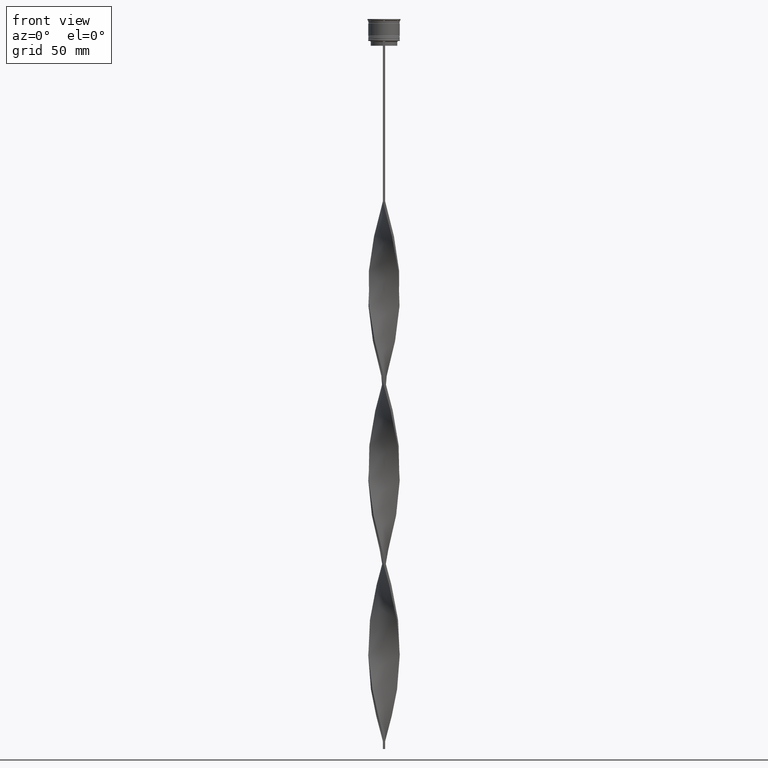
[diagram: clean part render]
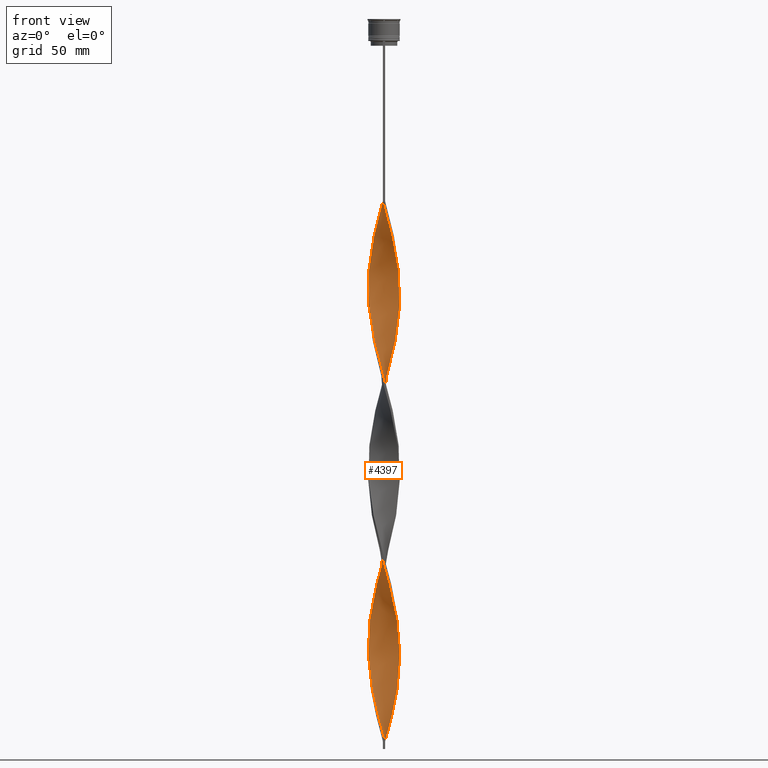
[diagram: same view with one face highlighted and labeled with its STEP entity id]
A machine part, front view. The second image highlights one B-rep face of the part: STEP entity #4397.
In plain terms, the highlighted face is a freeform B-spline surface patch.
Its self-contained STEP definition (entity closure, byte-faithful):
#5 = CARTESIAN_POINT ( 'NONE',  ( 8.438854389437562276, -5.464672468518299908, -154.9772727272727195 ) ) ;
#11 = CARTESIAN_POINT ( 'NONE',  ( 0.6807823013221530051, -10.00495054751429436, -121.1969696969697026 ) ) ;
#16 = CARTESIAN_POINT ( 'NONE',  ( 1.396350487056338574, 9.956260036359481091, -336.8712121212120678 ) ) ;
#35 = CARTESIAN_POINT ( 'NONE',  ( 4.144791077655439082, 9.159564155400586216, -326.4772727272727479 ) ) ;
#43 = CARTESIAN_POINT ( 'NONE',  ( -9.946358941330908365, 1.465214115587967436, -284.9015151515151842 ) ) ;
#45 = CARTESIAN_POINT ( 'NONE',  ( -5.981795158687156722, -8.048641294001544821, -433.0151515151515014 ) ) ;
#53 = CARTESIAN_POINT ( 'NONE',  ( 8.048641294001544821, -5.981795158687156722, -261.5151515151515582 ) ) ;
#66 = CARTESIAN_POINT ( 'NONE',  ( -7.066350193083621889, 7.115419520218548399, -261.5151515151515582 ) ) ;
#78 = CARTESIAN_POINT ( 'NONE',  ( 7.575255041002667333, 6.610024179840422676, -310.8863636363635692 ) ) ;
#84 = CARTESIAN_POINT ( 'NONE',  ( -1.465214115587968102, -9.946358941330908365, -342.0681818181818130 ) ) ;
#86 = CARTESIAN_POINT ( 'NONE',  ( -4.144791077655438194, -9.159564155400586216, -440.8106060606060055 ) ) ;
#97 = CARTESIAN_POINT ( 'NONE',  ( 9.791478290104363325, 2.165514464143547535, -292.6969696969697452 ) ) ;
#102 = CARTESIAN_POINT ( 'NONE',  ( -6.610024179840430669, -7.575255041002668221, -321.2803030303030027 ) ) ;
#104 = CARTESIAN_POINT ( 'NONE',  ( -7.066350193083618336, -7.115419520218543070, -427.8181818181818130 ) ) ;
#111 = CARTESIAN_POINT ( 'NONE',  ( -5.406144972209745880, 8.476467727406435060, -253.7196969696969973 ) ) ;
#114 = CARTESIAN_POINT ( 'NONE',  ( 1.396350487056338796, 9.956260036359481091, -336.8712121212120110 ) ) ;
#118 = CARTESIAN_POINT ( 'NONE',  ( -0.6807823013221521169, -10.00495054751428725, -453.8030303030303116 ) ) ;
#128 = CARTESIAN_POINT ( 'NONE',  ( -4.144791077655439082, 9.159564155400593322, -248.5227272727272521 ) ) ;
#130 = CARTESIAN_POINT ( 'NONE',  ( -9.956260036359481091, 1.396350487056332357, -394.0378787878788103 ) ) ;
#137 = CARTESIAN_POINT ( 'NONE',  ( -9.159564155400593322, -4.144791077655439082, -305.6893939393939945 ) ) ;
#143 = CARTESIAN_POINT ( 'NONE',  ( 9.383630318513901614, 3.536945298625165712, -297.8939393939394336 ) ) ;
#154 = CARTESIAN_POINT ( 'NONE',  ( 9.791478290104368654, -2.165514464143551088, -396.6363636363636260 ) ) ;
#161 = CARTESIAN_POINT ( 'NONE',  ( 0.6807823013221530051, -10.00495054751429436, -349.8636363636363740 ) ) ;
#163 = CARTESIAN_POINT ( 'NONE',  ( -3.536945298625169265, 9.383630318513899837, -355.0606060606060623 ) ) ;
#166 = CARTESIAN_POINT ( 'NONE',  ( -1.396350487056333023, -9.956260036359481091, -451.2045454545454959 ) ) ;
#174 = CARTESIAN_POINT ( 'NONE',  ( 5.464672468518301685, 8.438854389437560499, -440.8106060606060055 ) ) ;
#182 = CARTESIAN_POINT ( 'NONE',  ( -10.05364105866910052, 0.03478588441202674214, -290.0984848484849294 ) ) ;
#184 = CARTESIAN_POINT ( 'NONE',  ( -5.464672468518295467, 8.438854389437556947, -362.8560606060606233 ) ) ;
#187 = CARTESIAN_POINT ( 'NONE',  ( -6.557445345164569339, -7.620814860596661688, -430.4166666666666856 ) ) ;
#204 = CARTESIAN_POINT ( 'NONE',  ( -4.775468024932592925, 8.818015941403515967, -251.1212121212121247 ) ) ;
#210 = CARTESIAN_POINT ( 'NONE',  ( 9.656198271192604210, -2.799061189350518397, -274.5075757575757507 ) ) ;
#213 = CARTESIAN_POINT ( 'NONE',  ( -8.784758693793767392, -4.836374126534751738, -417.4242424242424363 ) ) ;
#233 = CARTESIAN_POINT ( 'NONE',  ( 9.159564155400593322, 4.144791077655439970, -420.0227272727271952 ) ) ;
#249 = CARTESIAN_POINT ( 'NONE',  ( 9.956260036359488197, 1.396350487056335021, -409.6287878787878185 ) ) ;
#256 = CARTESIAN_POINT ( 'NONE',  ( 1.465214115587970989, 9.946358941330910142, -456.4015151515151274 ) ) ;
#267 = CARTESIAN_POINT ( 'NONE',  ( -9.806229153776044427, 2.097705838203424378, -162.7727272727272805 ) ) ;
#279 = CARTESIAN_POINT ( 'NONE',  ( -8.476467727406427954, 5.406144972209743216, -149.7803030303030596 ) ) ;
#302 = CARTESIAN_POINT ( 'NONE',  ( -2.165514464143550200, 9.791478290104361548, -121.1969696969697026 ) ) ;
#314 = CARTESIAN_POINT ( 'NONE',  ( -4.208075784551208010, 9.130662998149976062, -128.9924242424242209 ) ) ;
#324 = CARTESIAN_POINT ( 'NONE',  ( 4.208075784551210674, 9.130662998149984944, -446.0075757575756938 ) ) ;
#335 = CARTESIAN_POINT ( 'NONE',  ( -7.066350193083618336, -7.115419520218543070, -199.1515151515151558 ) ) ;
#342 = CARTESIAN_POINT ( 'NONE',  ( 1.396350487056334577, -9.956260036359488197, -123.7954545454545467 ) ) ;
#344 = CARTESIAN_POINT ( 'NONE',  ( -9.791478290104363325, -2.165514464143549311, -178.3636363636364024 ) ) ;
#351 = CARTESIAN_POINT ( 'NONE',  ( 9.806229153776049756, 2.097705838203425266, -183.5606060606060908 ) ) ;
#365 = CARTESIAN_POINT ( 'NONE',  ( 5.981795158687160274, -8.048641294001550150, -141.9848484848484986 ) ) ;
#375 = CARTESIAN_POINT ( 'NONE',  ( 1.465214115587968324, -9.946358941330901260, -232.9318181818181870 ) ) ;
#387 = CARTESIAN_POINT ( 'NONE',  ( 7.575255041002672662, -6.610024179840428893, -149.7803030303030596 ) ) ;
#392 = CARTESIAN_POINT ( 'NONE',  ( -4.775468024932591149, -8.818015941403507085, -209.5454545454545610 ) ) ;
#400 = CARTESIAN_POINT ( 'NONE',  ( -6.557445345164573780, 7.620814860596668794, -258.9166666666666288 ) ) ;
#410 = CARTESIAN_POINT ( 'NONE',  ( 9.383630318513901614, 3.536945298625165712, -297.8939393939394336 ) ) ;
#419 = CARTESIAN_POINT ( 'NONE',  ( -4.208075784551214227, -9.130662998149981391, -331.6742424242423795 ) ) ;
#422 = DIRECTION ( 'NONE',  ( 0.000000000000000000, 1.000000000000000000, 0.000000000000000000 ) ) ;
#433 = CARTESIAN_POINT ( 'NONE',  ( 4.208075784551208898, -9.130662998149976062, -243.3257575757575637 ) ) ;
#441 = CARTESIAN_POINT ( 'NONE',  ( -2.799061189350517509, 9.656198271192611315, -243.3257575757575637 ) ) ;
#447 = CARTESIAN_POINT ( 'NONE',  ( 0.7499999999999994449, -3.333333333333330373, -459.0000000000000000 ) ) ;
#448 = CARTESIAN_POINT ( 'NONE',  ( -2.799061189350517509, 9.656198271192611315, -243.3257575757575637 ) ) ;
#450 = CARTESIAN_POINT ( 'NONE',  ( 3.471926133502974743, 9.407881213296597878, -329.0757575757575637 ) ) ;
#453 = CARTESIAN_POINT ( 'NONE',  ( 6.557445345164570227, 7.620814860596660800, -316.0833333333332575 ) ) ;
#458 = CARTESIAN_POINT ( 'NONE',  ( 3.536945298625171041, 9.383630318513906943, -219.9393939393939377 ) ) ;
#465 = CARTESIAN_POINT ( 'NONE',  ( 6.610024179840430669, 7.575255041002670886, -206.9469696969697168 ) ) ;
#468 = CARTESIAN_POINT ( 'NONE',  ( -4.144791077655438194, -9.159564155400586216, -212.1439393939393767 ) ) ;
#471 = CARTESIAN_POINT ( 'NONE',  ( -7.115419520218543070, 7.066350193083617448, -370.6515151515151842 ) ) ;
#479 = CARTESIAN_POINT ( 'NONE',  ( 4.836374126534754403, 8.784758693793774498, -443.4090909090909349 ) ) ;
#481 = CARTESIAN_POINT ( 'NONE',  ( -4.775468024932591149, -8.818015941403507085, -438.2121212121212466 ) ) ;
#488 = CARTESIAN_POINT ( 'NONE',  ( 5.464672468518301685, 8.438854389437560499, -212.1439393939393767 ) ) ;
#493 = CARTESIAN_POINT ( 'NONE',  ( 8.784758693793769169, 4.836374126534749074, -303.0909090909091219 ) ) ;
#509 = CARTESIAN_POINT ( 'NONE',  ( -3.536945298625171930, -9.383630318513906943, -334.2727272727272521 ) ) ;
#511 = CARTESIAN_POINT ( 'NONE',  ( -4.208075784551208898, 9.130662998149976062, -357.6590909090909918 ) ) ;
#524 = CARTESIAN_POINT ( 'NONE',  ( 9.407881213296604983, 3.471926133502976075, -417.4242424242424363 ) ) ;
#532 = CARTESIAN_POINT ( 'NONE',  ( 2.165514464143551976, 9.791478290104368654, -225.1363636363636260 ) ) ;
#536 = CARTESIAN_POINT ( 'NONE',  ( 6.037348324179360404, -8.007054715220112584, -251.1212121212121247 ) ) ;
#539 = CARTESIAN_POINT ( 'NONE',  ( 0.7499999999999985567, -9.999999999999998224, -459.0000000000000000 ) ) ;
#556 = CARTESIAN_POINT ( 'NONE',  ( 6.557445345164574668, -7.620814860596668794, -373.2499999999999432 ) ) ;
#570 = CARTESIAN_POINT ( 'NONE',  ( 9.130662998149981391, -4.208075784551211562, -388.8409090909090651 ) ) ;
#581 = CARTESIAN_POINT ( 'NONE',  ( 10.00000000000000533, -0.7500000000000004441, -401.8333333333333144 ) ) ;
#603 = CARTESIAN_POINT ( 'NONE',  ( 5.406144972209745880, -8.476467727406435060, -368.0530303030302548 ) ) ;
#615 = CARTESIAN_POINT ( 'NONE',  ( -8.784758693793767392, -4.836374126534751738, -188.7575757575757507 ) ) ;
#626 = CARTESIAN_POINT ( 'NONE',  ( -9.656198271192604210, 2.799061189350515289, -160.1742424242424647 ) ) ;
#652 = CARTESIAN_POINT ( 'NONE',  ( 8.438854389437562276, -5.464672468518299908, -383.6439393939393767 ) ) ;
#664 = CARTESIAN_POINT ( 'NONE',  ( -2.865814812699130076, 9.636597638877821836, -123.7954545454545467 ) ) ;
#674 = CARTESIAN_POINT ( 'NONE',  ( -8.438854389437555170, -5.464672468518296355, -191.3560606060605949 ) ) ;
#678 = CARTESIAN_POINT ( 'NONE',  ( 9.946358941330910142, -1.465214115587970545, -170.5681818181818414 ) ) ;
#701 = CARTESIAN_POINT ( 'NONE',  ( 6.037348324179360404, -8.007054715220112584, -251.1212121212121247 ) ) ;
#722 = CARTESIAN_POINT ( 'NONE',  ( -5.464672468518295467, 8.438854389437556947, -362.8560606060606233 ) ) ;
#728 = CARTESIAN_POINT ( 'NONE',  ( 2.165514464143551976, 9.791478290104366877, -225.1363636363636260 ) ) ;
#735 = CARTESIAN_POINT ( 'NONE',  ( 1.396350487056334799, -9.956260036359488197, -123.7954545454545325 ) ) ;
#739 = CARTESIAN_POINT ( 'NONE',  ( 9.946358941330901260, 1.465214115587971877, -290.0984848484848726 ) ) ;
#746 = CARTESIAN_POINT ( 'NONE',  ( 4.208075784551209786, 9.130662998149983167, -217.3409090909090651 ) ) ;
#748 = CARTESIAN_POINT ( 'NONE',  ( -6.557445345164569339, -7.620814860596662577, -430.4166666666666856 ) ) ;
#752 = CARTESIAN_POINT ( 'NONE',  ( 10.00495054751429613, 0.6807823013221513397, -178.3636363636364024 ) ) ;
#756 = CARTESIAN_POINT ( 'NONE',  ( -4.208075784551208010, 9.130662998149976062, -357.6590909090909349 ) ) ;
#764 = CARTESIAN_POINT ( 'NONE',  ( 9.656198271192611315, 2.799061189350516621, -186.1590909090908781 ) ) ;
#767 = CARTESIAN_POINT ( 'NONE',  ( -9.946358941330903036, -1.465214115587968990, -404.4318181818180733 ) ) ;
#772 = CARTESIAN_POINT ( 'NONE',  ( -8.476467727406435060, -5.406144972209745880, -310.8863636363635692 ) ) ;
#774 = CARTESIAN_POINT ( 'NONE',  ( 5.981795158687153169, 8.048641294001546598, -318.6818181818181870 ) ) ;
#777 = CARTESIAN_POINT ( 'NONE',  ( 9.159564155400586216, -4.144791077655439082, -269.3106060606060623 ) ) ;
#787 = CARTESIAN_POINT ( 'NONE',  ( -0.03478588441202913606, -10.05364105866910052, -347.2651515151514445 ) ) ;
#789 = CARTESIAN_POINT ( 'NONE',  ( -7.575255041002665557, -6.610024179840425340, -425.2196969696969404 ) ) ;
#793 = CARTESIAN_POINT ( 'NONE',  ( -7.575255041002670886, 6.610024179840430669, -264.1136363636363171 ) ) ;
#796 = CARTESIAN_POINT ( 'NONE',  ( 4.208075784551209786, -9.130662998149976062, -243.3257575757575637 ) ) ;
#805 = CARTESIAN_POINT ( 'NONE',  ( -0.6807823013221503405, 10.00495054751429613, -235.5303030303030312 ) ) ;
#807 = CARTESIAN_POINT ( 'NONE',  ( -9.656198271192604210, 2.799061189350515289, -388.8409090909090651 ) ) ;
#812 = CARTESIAN_POINT ( 'NONE',  ( -9.791478290104366877, 2.165514464143551976, -282.3030303030303116 ) ) ;
#815 = CARTESIAN_POINT ( 'NONE',  ( 8.438854389437556947, 5.464672468518295467, -305.6893939393939945 ) ) ;
#818 = CARTESIAN_POINT ( 'NONE',  ( -7.066350193083618336, -7.115419520218543070, -427.8181818181818130 ) ) ;
#827 = CARTESIAN_POINT ( 'NONE',  ( 4.144791077655438194, -9.159564155400593322, -362.8560606060606233 ) ) ;
#838 = CARTESIAN_POINT ( 'NONE',  ( -9.956260036359488197, -1.396350487056336132, -295.2954545454545041 ) ) ;
#842 = CARTESIAN_POINT ( 'NONE',  ( 7.066350193083616560, 7.115419520218544847, -313.4848484848484986 ) ) ;
#855 = CARTESIAN_POINT ( 'NONE',  ( 2.165514464143551976, 9.791478290104366877, -453.8030303030303116 ) ) ;
#864 = CARTESIAN_POINT ( 'NONE',  ( 4.208075784551210674, 9.130662998149984944, -217.3409090909090651 ) ) ;
#868 = CARTESIAN_POINT ( 'NONE',  ( 10.00495054751428903, -0.6807823013221527830, -282.3030303030303116 ) ) ;
#871 = CARTESIAN_POINT ( 'NONE',  ( 0.03478588441202859483, -10.05364105866909341, -456.4015151515151274 ) ) ;
#879 = CARTESIAN_POINT ( 'NONE',  ( 7.575255041002671774, -6.610024179840428005, -378.4469696969697452 ) ) ;
#885 = CARTESIAN_POINT ( 'NONE',  ( 5.981795158687160274, -8.048641294001550150, -370.6515151515151842 ) ) ;
#889 = CARTESIAN_POINT ( 'NONE',  ( 10.00495054751429613, 0.6807823013221512287, -178.3636363636364024 ) ) ;
#892 = CARTESIAN_POINT ( 'NONE',  ( -4.144791077655437306, -9.159564155400586216, -440.8106060606060055 ) ) ;
#896 = VERTEX_POINT ( 'NONE', #3546 ) ;
#913 = CARTESIAN_POINT ( 'NONE',  ( 4.836374126534754403, 8.784758693793774498, -443.4090909090909349 ) ) ;
#925 = CARTESIAN_POINT ( 'NONE',  ( -8.048641294001546598, 5.981795158687156722, -147.1818181818181870 ) ) ;
#930 = CARTESIAN_POINT ( 'NONE',  ( 5.981795158687160274, -8.048641294001550150, -370.6515151515151842 ) ) ;
#939 = CARTESIAN_POINT ( 'NONE',  ( 9.656198271192611315, 2.799061189350516621, -414.8257575757575637 ) ) ;
#961 = CARTESIAN_POINT ( 'NONE',  ( -1.465214115587969879, 9.946358941330903036, -118.5984848484848442 ) ) ;
#972 = CARTESIAN_POINT ( 'NONE',  ( -9.791478290104363325, -2.165514464143549311, -178.3636363636364024 ) ) ;
#983 = CARTESIAN_POINT ( 'NONE',  ( -9.806229153776044427, 2.097705838203424378, -162.7727272727272805 ) ) ;
#1009 = CARTESIAN_POINT ( 'NONE',  ( 3.471926133502976963, -9.407881213296604983, -131.5909090909090935 ) ) ;
#1011 = CARTESIAN_POINT ( 'NONE',  ( -9.946358941330903036, -1.465214115587968990, -175.7651515151515014 ) ) ;
#1024 = CARTESIAN_POINT ( 'NONE',  ( -4.836374126534752627, 8.784758693793767392, -131.5909090909090935 ) ) ;
#1034 = CARTESIAN_POINT ( 'NONE',  ( 5.406144972209745880, -8.476467727406435060, -139.3863636363636260 ) ) ;
#1045 = CARTESIAN_POINT ( 'NONE',  ( 9.956260036359481091, -1.396350487056338130, -279.7045454545454390 ) ) ;
#1054 = ORIENTED_EDGE ( 'NONE', *, *, #3143, .F. ) ;
#1059 = CARTESIAN_POINT ( 'NONE',  ( 2.097705838203425266, -9.806229153776049756, -126.3939393939393909 ) ) ;
#1064 = CARTESIAN_POINT ( 'NONE',  ( 9.636597638877821836, 2.865814812699131409, -295.2954545454545041 ) ) ;
#1076 = CARTESIAN_POINT ( 'NONE',  ( -10.00495054751429613, -0.6807823013221500075, -292.6969696969697452 ) ) ;
#1078 = CARTESIAN_POINT ( 'NONE',  ( -7.620814860596663465, 6.557445345164569339, -373.2499999999999432 ) ) ;
#1084 = CARTESIAN_POINT ( 'NONE',  ( 0.7499999999999985567, -9.999999999999998224, -459.0000000000000000 ) ) ;
#1089 = CARTESIAN_POINT ( 'NONE',  ( -2.097705838203423490, -9.806229153776044427, -219.9393939393939377 ) ) ;
#1097 = CARTESIAN_POINT ( 'NONE',  ( -10.05364105866910052, 0.03478588441202685316, -290.0984848484848726 ) ) ;
#1099 = CARTESIAN_POINT ( 'NONE',  ( -9.806229153776044427, 2.097705838203424378, -391.4393939393939945 ) ) ;
#1104 = CARTESIAN_POINT ( 'NONE',  ( 5.981795158687160274, -8.048641294001550150, -141.9848484848484986 ) ) ;
#1110 = CARTESIAN_POINT ( 'NONE',  ( 4.775468024932587596, 8.818015941403508862, -323.8787878787878753 ) ) ;
#1115 = CARTESIAN_POINT ( 'NONE',  ( 8.476467727406435060, 5.406144972209746768, -196.5530303030303116 ) ) ;
#1117 = CARTESIAN_POINT ( 'NONE',  ( -8.438854389437555170, -5.464672468518296355, -420.0227272727271952 ) ) ;
#1121 = CARTESIAN_POINT ( 'NONE',  ( 0.7499999999999985567, -9.999999999999998224, -459.0000000000000000 ) ) ;
#1122 = CARTESIAN_POINT ( 'NONE',  ( 7.066350193083622777, -7.115419520218548399, -147.1818181818181870 ) ) ;
#1126 = CARTESIAN_POINT ( 'NONE',  ( 1.465214115587968324, -9.946358941330903036, -232.9318181818181870 ) ) ;
#1129 = CARTESIAN_POINT ( 'NONE',  ( -2.799061189350513512, -9.656198271192605986, -217.3409090909090651 ) ) ;
#1140 = CARTESIAN_POINT ( 'NONE',  ( -9.636597638877828942, 2.865814812699136738, -279.7045454545454390 ) ) ;
#1143 = CARTESIAN_POINT ( 'NONE',  ( -10.05364105866909341, -0.03478588441202934423, -399.2348484848484418 ) ) ;
#1149 = CARTESIAN_POINT ( 'NONE',  ( 7.115419520218548399, 7.066350193083621889, -204.3484848484848726 ) ) ;
#1151 = CARTESIAN_POINT ( 'NONE',  ( -0.03478588441203184223, 10.05364105866909341, -342.0681818181818699 ) ) ;
#1161 = CARTESIAN_POINT ( 'NONE',  ( 4.836374126534754403, 8.784758693793774498, -214.7424242424242209 ) ) ;
#1163 = CARTESIAN_POINT ( 'NONE',  ( -8.007054715220110808, -6.037348324179360404, -422.6212121212121247 ) ) ;
#1167 = CARTESIAN_POINT ( 'NONE',  ( 8.476467727406435060, 5.406144972209746768, -196.5530303030303116 ) ) ;
#1169 = CARTESIAN_POINT ( 'NONE',  ( -5.406144972209744104, -8.476467727406427954, -206.9469696969697168 ) ) ;
#1172 = CARTESIAN_POINT ( 'NONE',  ( -9.383630318513899837, -3.536945298625169265, -412.2272727272727479 ) ) ;
#1179 = CARTESIAN_POINT ( 'NONE',  ( 7.066350193083622777, -7.115419520218548399, -375.8484848484848726 ) ) ;
#1186 = CARTESIAN_POINT ( 'NONE',  ( -3.471926133502978296, 9.407881213296603207, -245.9242424242424363 ) ) ;
#1189 = CARTESIAN_POINT ( 'NONE',  ( 0.7499999999999985567, -9.999999999999998224, -230.3333333333333428 ) ) ;
#1192 = CARTESIAN_POINT ( 'NONE',  ( -2.799061189350513512, -9.656198271192605986, -446.0075757575756938 ) ) ;
#1199 = CARTESIAN_POINT ( 'NONE',  ( 4.208075784551209786, 9.130662998149983167, -446.0075757575756938 ) ) ;
#1208 = CARTESIAN_POINT ( 'NONE',  ( 3.536945298625171041, 9.383630318513906943, -219.9393939393939377 ) ) ;
#1213 = CARTESIAN_POINT ( 'NONE',  ( 9.956260036359481091, -1.396350487056338352, -279.7045454545453822 ) ) ;
#1217 = CARTESIAN_POINT ( 'NONE',  ( -8.048641294001546598, 5.981795158687156722, -375.8484848484848726 ) ) ;
#1225 = CARTESIAN_POINT ( 'NONE',  ( 8.438854389437562276, -5.464672468518299908, -383.6439393939393767 ) ) ;
#1234 = CARTESIAN_POINT ( 'NONE',  ( -9.956260036359481091, 1.396350487056332357, -165.3712121212120962 ) ) ;
#1238 = CARTESIAN_POINT ( 'NONE',  ( 10.00000000000000533, -0.7500000000000005551, -173.1666666666666856 ) ) ;
#1241 = CARTESIAN_POINT ( 'NONE',  ( -9.407881213296597878, 3.471926133502974743, -386.2424242424242493 ) ) ;
#1257 = CARTESIAN_POINT ( 'NONE',  ( 8.818015941403514191, 4.775468024932592925, -422.6212121212121247 ) ) ;
#1272 = CARTESIAN_POINT ( 'NONE',  ( 10.05364105866910052, -0.03478588441203001036, -404.4318181818181301 ) ) ;
#1282 = CARTESIAN_POINT ( 'NONE',  ( -6.037348324179360404, 8.007054715220112584, -136.7878787878787818 ) ) ;
#1294 =( BOUNDED_CURVE ( )  B_SPLINE_CURVE ( 2, ( #2408, #3035, #2259, #342, #1343, #2701, #1009, #3620, #2370, #1034, #365, #2031, #4115, #1698, #3059, #5, #2724, #2389, #3413, #2741, #2070, #3775, #1238, #2596, #889, #3954, #4228, #764, #4181, #1816, #2781, #1115, #3832, #2514, #2174, #2430, #2134, #1781, #1161, #746, #458, #3872, #728, #3182, #2843, #2155, #805, #2108, #4138, #441, #3474, #128, #3794, #3534, #3496, #400, #66, #2467, #1737, #1757, #3100, #1426, #4161, #1140, #3161, #43, #1799, #1097, #1076, #1402, #1485, #3516, #2760, #2091, #3455, #2449, #3121, #1461, #2492, #102, #3812, #2820, #2799, #419, #3856, #4203, #3145, #84, #1444, #787, #1882, #1600, #2632, #3634, #4249, #827, #2957, #2558, #930, #2883, #1179, #879, #4343, #1225, #2298, #570, #4296, #1905, #154, #2274, #2862, #1272, #1930, #249, #3295, #4318, #524, #3919, #1863, #2583, #2531, #2606, #1552, #3994, #3892, #174, #479, #1199, #3272, #1839, #855, #1528, #3209 ),
 .UNSPECIFIED., .F., .T. ) 
 B_SPLINE_CURVE_WITH_KNOTS ( ( 3, 2, 2, 2, 2, 2, 2, 2, 2, 2, 2, 2, 2, 2, 2, 2, 2, 2, 2, 2, 2, 2, 2, 2, 2, 2, 2, 2, 2, 2, 2, 2, 2, 2, 2, 2, 2, 2, 2, 2, 2, 2, 2, 2, 2, 2, 2, 2, 2, 2, 2, 2, 2, 2, 2, 2, 2, 2, 2, 2, 2, 2, 2, 2, 2, 2, 3 ),
 ( 0.000000000000000000, 0.01136363636363636222, 0.02272727272727272443, 0.03409090909090908839, 0.04545454545454544887, 0.05681818181818181629, 0.06818181818181817677, 0.07954545454545454419, 0.09090909090909089774, 0.1022727272727272790, 0.1136363636363636326, 0.1250000000000000000, 0.1363636363636363535, 0.1477272727272727348, 0.1590909090909090884, 0.1704545454545454419, 0.1818181818181817955, 0.1931818181818182045, 0.2045454545454545581, 0.2159090909090909116, 0.2272727272727272652, 0.2386363636363636465, 0.2500000000000000000, 0.2613636363636363535, 0.2727272727272727071, 0.2840909090909091161, 0.2954545454545454697, 0.3068181818181818232, 0.3181818181818181768, 0.3295454545454545303, 0.3409090909090908839, 0.3522727272727272929, 0.3636363636363635909, 0.3750000000000000000, 0.3863636363636364091, 0.3977272727272727071, 0.4090909090909091161, 0.4204545454545454697, 0.4318181818181818232, 0.4431818181818181768, 0.4545454545454545303, 0.4659090909090908839, 0.4772727272727272929, 0.4886363636363635909, 0.5000000000000000000, 0.5113636363636363535, 0.5227272727272727071, 0.5340909090909090606, 0.5454545454545454142, 0.5568181818181817677, 0.5681818181818182323, 0.5795454545454545858, 0.5909090909090909394, 0.6022727272727272929, 0.6136363636363636465, 0.6250000000000000000, 0.6363636363636363535, 0.6477272727272727071, 0.6590909090909090606, 0.6704545454545454142, 0.6818181818181817677, 0.6931818181818182323, 0.7045454545454545858, 0.7159090909090909394, 0.7272727272727271819, 0.7386363636363636465, 0.7500000000000000000 ),
 .UNSPECIFIED. ) 
 CURVE ( )  GEOMETRIC_REPRESENTATION_ITEM ( )  RATIONAL_B_SPLINE_CURVE ( ( 1.000000000000000000, 0.9974521146102535152, 1.000000000000000000, 0.9974521146102535152, 1.000000000000000000, 0.9974521146102535152, 1.000000000000000000, 0.9974521146102535152, 1.000000000000000000, 0.9974521146102535152, 1.000000000000000000, 0.9974521146102535152, 1.000000000000000000, 0.9974521146102535152, 1.000000000000000000, 0.9974521146102535152, 1.000000000000000000, 0.9974521146102535152, 1.000000000000000000, 0.9974521146102535152, 1.000000000000000000, 0.9974521146102535152, 1.000000000000000000, 0.9974521146102535152, 1.000000000000000000, 0.9974521146102535152, 1.000000000000000000, 0.9974521146102535152, 1.000000000000000000, 0.9974521146102535152, 1.000000000000000000, 0.9974521146102535152, 1.000000000000000000, 0.9974521146102535152, 1.000000000000000000, 0.9974521146102535152, 1.000000000000000000, 0.9974521146102535152, 1.000000000000000000, 0.9974521146102535152, 1.000000000000000000, 0.9974521146102535152, 1.000000000000000000, 0.9974521146102535152, 1.000000000000000000, 0.9974521146102535152, 1.000000000000000000, 0.9974521146102535152, 1.000000000000000000, 0.9974521146102535152, 1.000000000000000000, 0.9974521146102535152, 1.000000000000000000, 0.9974521146102535152, 1.000000000000000000, 0.9974521146102535152, 1.000000000000000000, 0.9974521146102535152, 1.000000000000000000, 0.9974521146102535152, 1.000000000000000000, 0.9974521146102535152, 1.000000000000000000, 0.9974521146102535152, 1.000000000000000000, 0.9974521146102535152, 1.000000000000000000, 0.9974521146102535152, 1.000000000000000000, 0.9974521146102535152, 1.000000000000000000, 0.9974521146102535152, 1.000000000000000000, 0.9974521146102535152, 1.000000000000000000, 0.9974521146102535152, 1.000000000000000000, 0.9974521146102535152, 1.000000000000000000, 0.9974521146102535152, 1.000000000000000000, 0.9974521146102535152, 1.000000000000000000, 0.9974521146102535152, 1.000000000000000000, 0.9974521146102535152, 1.000000000000000000, 0.9974521146102535152, 1.000000000000000000, 0.9974521146102535152, 1.000000000000000000, 0.9974521146102535152, 1.000000000000000000, 0.9974521146102535152, 1.000000000000000000, 0.9974521146102535152, 1.000000000000000000, 0.9974521146102535152, 1.000000000000000000, 0.9974521146102535152, 1.000000000000000000, 0.9974521146102535152, 1.000000000000000000, 0.9974521146102535152, 1.000000000000000000, 0.9974521146102535152, 1.000000000000000000, 0.9974521146102535152, 1.000000000000000000, 0.9974521146102535152, 1.000000000000000000, 0.9974521146102535152, 1.000000000000000000, 0.9974521146102535152, 1.000000000000000000, 0.9974521146102535152, 1.000000000000000000, 0.9974521146102535152, 1.000000000000000000, 0.9974521146102535152, 1.000000000000000000, 0.9974521146102535152, 1.000000000000000000, 0.9974521146102535152, 1.000000000000000000, 0.9974521146102535152, 1.000000000000000000, 0.9974521146102535152, 1.000000000000000000, 0.9974521146102535152, 1.000000000000000000, 0.9974521146102535152, 1.000000000000000000 ) ) 
 REPRESENTATION_ITEM ( '' )  );
#1307 = CARTESIAN_POINT ( 'NONE',  ( 7.575255041002672662, -6.610024179840428893, -378.4469696969697452 ) ) ;
#1317 = CARTESIAN_POINT ( 'NONE',  ( -8.007054715220110808, -6.037348324179360404, -193.9545454545454675 ) ) ;
#1327 = CARTESIAN_POINT ( 'NONE',  ( 8.048641294001550150, 5.981795158687160274, -427.8181818181818130 ) ) ;
#1343 = CARTESIAN_POINT ( 'NONE',  ( 2.097705838203425266, -9.806229153776049756, -126.3939393939393909 ) ) ;
#1346 = CARTESIAN_POINT ( 'NONE',  ( -7.066350193083618336, -7.115419520218543070, -199.1515151515151558 ) ) ;
#1361 = CARTESIAN_POINT ( 'NONE',  ( -6.610024179840422676, 7.575255041002665557, -139.3863636363636260 ) ) ;
#1373 = CARTESIAN_POINT ( 'NONE',  ( 4.144791077655439082, -9.159564155400593322, -134.1893939393939661 ) ) ;
#1378 = CARTESIAN_POINT ( 'NONE',  ( -2.165514464143550200, 9.791478290104361548, -349.8636363636363740 ) ) ;
#1391 = CARTESIAN_POINT ( 'NONE',  ( -0.03478588441203184223, 10.05364105866909341, -342.0681818181818130 ) ) ;
#1402 = CARTESIAN_POINT ( 'NONE',  ( -9.956260036359488197, -1.396350487056335687, -295.2954545454545041 ) ) ;
#1407 = VECTOR ( 'NONE', #422, 1000.000000000000000 ) ;
#1410 = CARTESIAN_POINT ( 'NONE',  ( 6.557445345164574668, -7.620814860596668794, -144.5833333333333428 ) ) ;
#1415 = CARTESIAN_POINT ( 'NONE',  ( 7.066350193083616560, 7.115419520218544847, -313.4848484848484986 ) ) ;
#1426 = CARTESIAN_POINT ( 'NONE',  ( -9.130662998149981391, 4.208075784551214227, -274.5075757575757507 ) ) ;
#1435 = CARTESIAN_POINT ( 'NONE',  ( 9.130662998149983167, -4.208075784551211562, -160.1742424242424647 ) ) ;
#1440 = CARTESIAN_POINT ( 'NONE',  ( 0.6807823013221536712, 10.00495054751428903, -339.4696969696969973 ) ) ;
#1444 = CARTESIAN_POINT ( 'NONE',  ( -0.7499999999999998890, -10.00000000000000533, -344.6666666666666856 ) ) ;
#1455 = CARTESIAN_POINT ( 'NONE',  ( 5.406144972209744992, 8.476467727406426178, -321.2803030303030027 ) ) ;
#1461 = CARTESIAN_POINT ( 'NONE',  ( -7.620814860596668794, -6.557445345164572004, -316.0833333333332575 ) ) ;
#1463 = LINE ( 'NONE', #3796, #1407 ) ;
#1468 = CARTESIAN_POINT ( 'NONE',  ( 9.159564155400593322, 4.144791077655439970, -191.3560606060605949 ) ) ;
#1472 = CARTESIAN_POINT ( 'NONE',  ( 0.03478588441202860176, -10.05364105866909341, -227.7348484848484702 ) ) ;
#1485 = CARTESIAN_POINT ( 'NONE',  ( -9.806229153776051533, -2.097705838203422157, -297.8939393939394336 ) ) ;
#1488 = CARTESIAN_POINT ( 'NONE',  ( -10.00495054751428725, 0.6807823013221516728, -396.6363636363636260 ) ) ;
#1494 = CARTESIAN_POINT ( 'NONE',  ( -2.097705838203422601, 9.806229153776051533, -240.7272727272727479 ) ) ;
#1496 = CARTESIAN_POINT ( 'NONE',  ( 6.557445345164570227, 7.620814860596661688, -316.0833333333332575 ) ) ;
#1499 = CARTESIAN_POINT ( 'NONE',  ( -8.476467727406427954, 5.406144972209743216, -378.4469696969697452 ) ) ;
#1515 = CARTESIAN_POINT ( 'NONE',  ( 6.037348324179366621, 8.007054715220117913, -209.5454545454545610 ) ) ;
#1518 = CARTESIAN_POINT ( 'NONE',  ( -4.836374126534752627, 8.784758693793767392, -360.2575757575757507 ) ) ;
#1528 = CARTESIAN_POINT ( 'NONE',  ( 1.465214115587971433, 9.946358941330908365, -456.4015151515151274 ) ) ;
#1536 = CARTESIAN_POINT ( 'NONE',  ( -2.165514464143552864, -9.791478290104366877, -339.4696969696969973 ) ) ;
#1538 = CARTESIAN_POINT ( 'NONE',  ( -6.610024179840423564, 7.575255041002665557, -368.0530303030302548 ) ) ;
#1552 = CARTESIAN_POINT ( 'NONE',  ( 7.115419520218548399, 7.066350193083621889, -433.0151515151515014 ) ) ;
#1564 = CARTESIAN_POINT ( 'NONE',  ( -8.438854389437560499, 5.464672468518301685, -269.3106060606060623 ) ) ;
#1569 = CARTESIAN_POINT ( 'NONE',  ( 9.130662998149976062, 4.208075784551208898, -300.4924242424241925 ) ) ;
#1572 = CARTESIAN_POINT ( 'NONE',  ( -9.946358941330901260, -1.465214115587968990, -404.4318181818181301 ) ) ;
#1586 = CARTESIAN_POINT ( 'NONE',  ( 5.464672468518301685, 8.438854389437560499, -440.8106060606060055 ) ) ;
#1598 = B_SPLINE_CURVE_WITH_KNOTS ( 'NONE', 3,
 ( #2181, #2824, #447, #1121 ),
 .UNSPECIFIED., .F., .F.,
 ( 4, 4 ),
 ( 0.000000000000000000, 1.000000000000000000 ),
 .UNSPECIFIED. ) ;
#1600 = CARTESIAN_POINT ( 'NONE',  ( 1.396350487056334577, -9.956260036359488197, -352.4621212121211897 ) ) ;
#1609 = CARTESIAN_POINT ( 'NONE',  ( 0.7500000000000009992, 10.00000000000000533, -459.0000000000000000 ) ) ;
#1620 = CARTESIAN_POINT ( 'NONE',  ( -9.946358941330901260, -1.465214115587968990, -175.7651515151515014 ) ) ;
#1637 = CARTESIAN_POINT ( 'NONE',  ( 9.636597638877828942, -2.865814812699130965, -394.0378787878788103 ) ) ;
#1661 = CARTESIAN_POINT ( 'NONE',  ( 7.066350193083622777, -7.115419520218548399, -375.8484848484848726 ) ) ;
#1673 = CARTESIAN_POINT ( 'NONE',  ( -5.464672468518295467, 8.438854389437556947, -134.1893939393939377 ) ) ;
#1677 = VERTEX_POINT ( 'NONE', #2104 ) ;
#1684 = CARTESIAN_POINT ( 'NONE',  ( 2.165514464143551976, 9.791478290104368654, -453.8030303030303116 ) ) ;
#1698 = CARTESIAN_POINT ( 'NONE',  ( 7.575255041002671774, -6.610024179840428005, -149.7803030303030312 ) ) ;
#1700 = CARTESIAN_POINT ( 'NONE',  ( -8.784758693793767392, -4.836374126534751738, -188.7575757575757507 ) ) ;
#1732 = CARTESIAN_POINT ( 'NONE',  ( 8.476467727406427954, -5.406144972209744104, -264.1136363636363171 ) ) ;
#1737 = CARTESIAN_POINT ( 'NONE',  ( -8.007054715220117913, 6.037348324179363068, -266.7121212121212466 ) ) ;
#1743 = CARTESIAN_POINT ( 'NONE',  ( 8.007054715220117913, -6.037348324179365733, -152.3787878787879038 ) ) ;
#1748 = CARTESIAN_POINT ( 'NONE',  ( 2.865814812699127856, -9.636597638877821836, -238.1287878787878469 ) ) ;
#1757 = CARTESIAN_POINT ( 'NONE',  ( -8.438854389437560499, 5.464672468518302573, -269.3106060606060623 ) ) ;
#1765 = CARTESIAN_POINT ( 'NONE',  ( 5.406144972209745880, -8.476467727406435060, -139.3863636363635976 ) ) ;
#1770 = CARTESIAN_POINT ( 'NONE',  ( 9.130662998149976062, 4.208075784551208010, -300.4924242424242493 ) ) ;
#1781 = CARTESIAN_POINT ( 'NONE',  ( 5.464672468518301685, 8.438854389437560499, -212.1439393939393767 ) ) ;
#1792 = CARTESIAN_POINT ( 'NONE',  ( -4.144791077655437306, -9.159564155400586216, -212.1439393939393767 ) ) ;
#1799 = CARTESIAN_POINT ( 'NONE',  ( -10.00000000000000533, 0.7500000000000017764, -287.5000000000000568 ) ) ;
#1805 = CARTESIAN_POINT ( 'NONE',  ( -9.407881213296606759, -3.471926133502973411, -303.0909090909091219 ) ) ;
#1807 = CARTESIAN_POINT ( 'NONE',  ( 2.799061189350518841, 9.656198271192604210, -331.6742424242423795 ) ) ;
#1810 = CARTESIAN_POINT ( 'NONE',  ( -10.00495054751428725, 0.6807823013221516728, -396.6363636363636260 ) ) ;
#1816 = CARTESIAN_POINT ( 'NONE',  ( 9.159564155400593322, 4.144791077655439082, -191.3560606060605949 ) ) ;
#1818 = CARTESIAN_POINT ( 'NONE',  ( -9.636597638877821836, -2.865814812699130520, -409.6287878787878185 ) ) ;
#1823 = CARTESIAN_POINT ( 'NONE',  ( -6.037348324179363068, -8.007054715220117913, -323.8787878787878753 ) ) ;
#1827 = CARTESIAN_POINT ( 'NONE',  ( 9.806229153776044427, -2.097705838203424378, -277.1060606060606233 ) ) ;
#1831 = CARTESIAN_POINT ( 'NONE',  ( -9.791478290104363325, -2.165514464143549311, -407.0303030303030027 ) ) ;
#1839 = CARTESIAN_POINT ( 'NONE',  ( 2.865814812699131853, 9.636597638877828942, -451.2045454545454959 ) ) ;
#1848 = CARTESIAN_POINT ( 'NONE',  ( 4.836374126534754403, 8.784758693793774498, -214.7424242424242209 ) ) ;
#1851 = CARTESIAN_POINT ( 'NONE',  ( 9.946358941330903036, 1.465214115587971877, -290.0984848484849294 ) ) ;
#1855 = CARTESIAN_POINT ( 'NONE',  ( -8.007054715220110808, -6.037348324179360404, -422.6212121212121247 ) ) ;
#1863 = CARTESIAN_POINT ( 'NONE',  ( 8.818015941403514191, 4.775468024932592925, -422.6212121212121247 ) ) ;
#1870 = CARTESIAN_POINT ( 'NONE',  ( -9.383630318513906943, 3.536945298625171930, -277.1060606060606233 ) ) ;
#1872 = CARTESIAN_POINT ( 'NONE',  ( -2.097705838203423490, -9.806229153776044427, -219.9393939393939377 ) ) ;
#1875 = CARTESIAN_POINT ( 'NONE',  ( -9.656198271192604210, 2.799061189350515289, -388.8409090909090651 ) ) ;
#1882 = CARTESIAN_POINT ( 'NONE',  ( 0.6807823013221528941, -10.00495054751429436, -349.8636363636363740 ) ) ;
#1889 = CARTESIAN_POINT ( 'NONE',  ( -0.6807823013221504516, 10.00495054751429613, -235.5303030303030312 ) ) ;
#1892 = CARTESIAN_POINT ( 'NONE',  ( -2.799061189350513512, -9.656198271192605986, -217.3409090909090651 ) ) ;
#1895 = CARTESIAN_POINT ( 'NONE',  ( -9.999999999999998224, -0.7499999999999991118, -401.8333333333333144 ) ) ;
#1905 = CARTESIAN_POINT ( 'NONE',  ( 9.636597638877828942, -2.865814812699130965, -394.0378787878787534 ) ) ;
#1918 = CARTESIAN_POINT ( 'NONE',  ( 9.383630318513906943, -3.536945298625171930, -391.4393939393939945 ) ) ;
#1930 = CARTESIAN_POINT ( 'NONE',  ( 10.00495054751429613, 0.6807823013221512287, -407.0303030303030027 ) ) ;
#1940 = CARTESIAN_POINT ( 'NONE',  ( 9.407881213296604983, 3.471926133502976519, -417.4242424242424363 ) ) ;
#1948 = CARTESIAN_POINT ( 'NONE',  ( -3.536945298625169265, 9.383630318513899837, -126.3939393939393909 ) ) ;
#1958 = CARTESIAN_POINT ( 'NONE',  ( -7.620814860596663465, 6.557445345164569339, -144.5833333333333428 ) ) ;
#1970 = CARTESIAN_POINT ( 'NONE',  ( -8.438854389437555170, -5.464672468518296355, -191.3560606060605949 ) ) ;
#1983 = CARTESIAN_POINT ( 'NONE',  ( 10.00495054751429613, 0.6807823013221513397, -407.0303030303030027 ) ) ;
#2009 = CARTESIAN_POINT ( 'NONE',  ( 8.784758693793772721, -4.836374126534756179, -386.2424242424242493 ) ) ;
#2021 = CARTESIAN_POINT ( 'NONE',  ( -7.620814860596662577, 6.557445345164569339, -144.5833333333333428 ) ) ;
#2026 =( BOUNDED_CURVE ( )  B_SPLINE_CURVE ( 2, ( #2362, #2040, #2626, #664, #1948, #314, #1024, #1673, #3990, #1361, #3698, #2021, #925, #3048, #2295, #3314, #2718, #4088, #267, #3386, #4394, #4366, #3008, #1620, #972, #2650, #2337, #4017, #615, #1970, #1317, #2670, #335, #4039, #2084, #3092, #392, #1792, #4152, #1129, #1089, #2398, #3465, #4125, #3429, #375, #3761, #1748, #4173, #433, #2443, #4195, #701, #3110, #3136, #3448, #53, #1732, #2795, #777, #2147, #2423, #3157, #1045, #3807, #2480, #2102, #739, #97, #1064, #410, #1770, #3847, #3508, #2064, #78, #1415, #453, #2773, #1455, #1110, #35, #2811, #3074, #3487, #16, #1440, #1391, #2462, #3824, #1378, #2750, #2736, #756, #3787, #722, #2122, #4105, #471, #4312, #1217, #1499, #2575, #3240, #1241, #1875, #4241, #4220, #1810, #2855, #1895, #1572, #1831, #3957, #1172, #3261, #213, #4287, #1855, #3909, #818, #187, #3595, #3935, #3222, #892, #3174, #1192, #3575, #166, #118, #871, #539 ),
 .UNSPECIFIED., .F., .T. ) 
 B_SPLINE_CURVE_WITH_KNOTS ( ( 3, 2, 2, 2, 2, 2, 2, 2, 2, 2, 2, 2, 2, 2, 2, 2, 2, 2, 2, 2, 2, 2, 2, 2, 2, 2, 2, 2, 2, 2, 2, 2, 2, 2, 2, 2, 2, 2, 2, 2, 2, 2, 2, 2, 2, 2, 2, 2, 2, 2, 2, 2, 2, 2, 2, 2, 2, 2, 2, 2, 2, 2, 2, 2, 2, 2, 3 ),
 ( 0.000000000000000000, 0.01136363636363636222, 0.02272727272727272443, 0.03409090909090908839, 0.04545454545454544887, 0.05681818181818181629, 0.06818181818181817677, 0.07954545454545454419, 0.09090909090909089774, 0.1022727272727272790, 0.1136363636363636326, 0.1250000000000000000, 0.1363636363636363535, 0.1477272727272727348, 0.1590909090909090884, 0.1704545454545454419, 0.1818181818181817955, 0.1931818181818182045, 0.2045454545454545581, 0.2159090909090909116, 0.2272727272727272652, 0.2386363636363636465, 0.2500000000000000000, 0.2613636363636363535, 0.2727272727272727071, 0.2840909090909091161, 0.2954545454545454697, 0.3068181818181818232, 0.3181818181818181768, 0.3295454545454545303, 0.3409090909090908839, 0.3522727272727272929, 0.3636363636363635909, 0.3750000000000000000, 0.3863636363636364091, 0.3977272727272727071, 0.4090909090909091161, 0.4204545454545454697, 0.4318181818181818232, 0.4431818181818181768, 0.4545454545454545303, 0.4659090909090908839, 0.4772727272727272929, 0.4886363636363635909, 0.5000000000000000000, 0.5113636363636363535, 0.5227272727272727071, 0.5340909090909090606, 0.5454545454545454142, 0.5568181818181817677, 0.5681818181818182323, 0.5795454545454545858, 0.5909090909090909394, 0.6022727272727272929, 0.6136363636363636465, 0.6250000000000000000, 0.6363636363636363535, 0.6477272727272727071, 0.6590909090909090606, 0.6704545454545454142, 0.6818181818181817677, 0.6931818181818182323, 0.7045454545454545858, 0.7159090909090909394, 0.7272727272727271819, 0.7386363636363636465, 0.7500000000000000000 ),
 .UNSPECIFIED. ) 
 CURVE ( )  GEOMETRIC_REPRESENTATION_ITEM ( )  RATIONAL_B_SPLINE_CURVE ( ( 1.000000000000000000, 0.9974521146102535152, 1.000000000000000000, 0.9974521146102535152, 1.000000000000000000, 0.9974521146102535152, 1.000000000000000000, 0.9974521146102535152, 1.000000000000000000, 0.9974521146102535152, 1.000000000000000000, 0.9974521146102535152, 1.000000000000000000, 0.9974521146102535152, 1.000000000000000000, 0.9974521146102535152, 1.000000000000000000, 0.9974521146102535152, 1.000000000000000000, 0.9974521146102535152, 1.000000000000000000, 0.9974521146102535152, 1.000000000000000000, 0.9974521146102535152, 1.000000000000000000, 0.9974521146102535152, 1.000000000000000000, 0.9974521146102535152, 1.000000000000000000, 0.9974521146102535152, 1.000000000000000000, 0.9974521146102535152, 1.000000000000000000, 0.9974521146102535152, 1.000000000000000000, 0.9974521146102535152, 1.000000000000000000, 0.9974521146102535152, 1.000000000000000000, 0.9974521146102535152, 1.000000000000000000, 0.9974521146102535152, 1.000000000000000000, 0.9974521146102535152, 1.000000000000000000, 0.9974521146102535152, 1.000000000000000000, 0.9974521146102535152, 1.000000000000000000, 0.9974521146102535152, 1.000000000000000000, 0.9974521146102535152, 1.000000000000000000, 0.9974521146102535152, 1.000000000000000000, 0.9974521146102535152, 1.000000000000000000, 0.9974521146102535152, 1.000000000000000000, 0.9974521146102535152, 1.000000000000000000, 0.9974521146102535152, 1.000000000000000000, 0.9974521146102535152, 1.000000000000000000, 0.9974521146102535152, 1.000000000000000000, 0.9974521146102535152, 1.000000000000000000, 0.9974521146102535152, 1.000000000000000000, 0.9974521146102535152, 1.000000000000000000, 0.9974521146102535152, 1.000000000000000000, 0.9974521146102535152, 1.000000000000000000, 0.9974521146102535152, 1.000000000000000000, 0.9974521146102535152, 1.000000000000000000, 0.9974521146102535152, 1.000000000000000000, 0.9974521146102535152, 1.000000000000000000, 0.9974521146102535152, 1.000000000000000000, 0.9974521146102535152, 1.000000000000000000, 0.9974521146102535152, 1.000000000000000000, 0.9974521146102535152, 1.000000000000000000, 0.9974521146102535152, 1.000000000000000000, 0.9974521146102535152, 1.000000000000000000, 0.9974521146102535152, 1.000000000000000000, 0.9974521146102535152, 1.000000000000000000, 0.9974521146102535152, 1.000000000000000000, 0.9974521146102535152, 1.000000000000000000, 0.9974521146102535152, 1.000000000000000000, 0.9974521146102535152, 1.000000000000000000, 0.9974521146102535152, 1.000000000000000000, 0.9974521146102535152, 1.000000000000000000, 0.9974521146102535152, 1.000000000000000000, 0.9974521146102535152, 1.000000000000000000, 0.9974521146102535152, 1.000000000000000000, 0.9974521146102535152, 1.000000000000000000, 0.9974521146102535152, 1.000000000000000000, 0.9974521146102535152, 1.000000000000000000, 0.9974521146102535152, 1.000000000000000000, 0.9974521146102535152, 1.000000000000000000, 0.9974521146102535152, 1.000000000000000000, 0.9974521146102535152, 1.000000000000000000 ) ) 
 REPRESENTATION_ITEM ( '' )  );
#2031 = CARTESIAN_POINT ( 'NONE',  ( 6.557445345164574668, -7.620814860596667906, -144.5833333333333428 ) ) ;
#2033 = CARTESIAN_POINT ( 'NONE',  ( -9.130662998149976062, -4.208075784551208010, -186.1590909090908781 ) ) ;
#2037 = CARTESIAN_POINT ( 'NONE',  ( 10.00000000000000533, -0.7500000000000004441, -173.1666666666666856 ) ) ;
#2040 = CARTESIAN_POINT ( 'NONE',  ( -1.465214115587969879, 9.946358941330901260, -118.5984848484848442 ) ) ;
#2064 = CARTESIAN_POINT ( 'NONE',  ( 8.007054715220116137, 6.037348324179355963, -308.2878787878788103 ) ) ;
#2070 = CARTESIAN_POINT ( 'NONE',  ( 9.791478290104368654, -2.165514464143551088, -167.9696969696969973 ) ) ;
#2084 = CARTESIAN_POINT ( 'NONE',  ( -5.981795158687156722, -8.048641294001544821, -204.3484848484848726 ) ) ;
#2087 = VERTEX_POINT ( 'NONE', #2954 ) ;
#2091 = CARTESIAN_POINT ( 'NONE',  ( -9.159564155400593322, -4.144791077655438194, -305.6893939393939945 ) ) ;
#2097 = CARTESIAN_POINT ( 'NONE',  ( 8.438854389437562276, -5.464672468518299908, -154.9772727272727195 ) ) ;
#2102 = CARTESIAN_POINT ( 'NONE',  ( 9.999999999999998224, 0.7499999999999980016, -287.5000000000000568 ) ) ;
#2104 = CARTESIAN_POINT ( 'NONE',  ( -0.7499999999999998890, -10.00000000000000533, -116.0000000000000000 ) ) ;
#2108 = CARTESIAN_POINT ( 'NONE',  ( -1.396350487056331913, 9.956260036359488197, -238.1287878787878469 ) ) ;
#2110 = CARTESIAN_POINT ( 'NONE',  ( -9.791478290104363325, -2.165514464143549311, -407.0303030303030027 ) ) ;
#2117 = CARTESIAN_POINT ( 'NONE',  ( 9.956260036359488197, 1.396350487056335243, -180.9621212121212182 ) ) ;
#2122 = CARTESIAN_POINT ( 'NONE',  ( -6.037348324179360404, 8.007054715220112584, -365.4545454545454959 ) ) ;
#2134 = CARTESIAN_POINT ( 'NONE',  ( 6.037348324179366621, 8.007054715220117913, -209.5454545454545610 ) ) ;
#2141 = CARTESIAN_POINT ( 'NONE',  ( -8.048641294001550150, -5.981795158687162051, -313.4848484848484986 ) ) ;
#2144 = CARTESIAN_POINT ( 'NONE',  ( 7.620814860596662577, -6.557445345164570227, -258.9166666666666288 ) ) ;
#2147 = CARTESIAN_POINT ( 'NONE',  ( 9.407881213296597878, -3.471926133502974743, -271.9090909090909349 ) ) ;
#2155 = CARTESIAN_POINT ( 'NONE',  ( 0.03478588441203076670, 10.05364105866910052, -232.9318181818181870 ) ) ;
#2161 = CARTESIAN_POINT ( 'NONE',  ( -9.806229153776051533, -2.097705838203422157, -297.8939393939394336 ) ) ;
#2163 = CARTESIAN_POINT ( 'NONE',  ( 7.115419520218543070, -7.066350193083619224, -256.3181818181818130 ) ) ;
#2174 = CARTESIAN_POINT ( 'NONE',  ( 7.115419520218548399, 7.066350193083621889, -204.3484848484848726 ) ) ;
#2176 = CARTESIAN_POINT ( 'NONE',  ( -2.799061189350513512, -9.656198271192605986, -446.0075757575756938 ) ) ;
#2181 = CARTESIAN_POINT ( 'NONE',  ( 0.7500000000000011102, 10.00000000000000533, -459.0000000000000000 ) ) ;
#2182 = CARTESIAN_POINT ( 'NONE',  ( -1.465214115587968102, -9.946358941330910142, -342.0681818181818699 ) ) ;
#2187 = CARTESIAN_POINT ( 'NONE',  ( -0.7499999999999997780, 9.999999999999998224, -344.6666666666666856 ) ) ;
#2209 = CARTESIAN_POINT ( 'NONE',  ( -8.818015941403515967, -4.775468024932588484, -308.2878787878788103 ) ) ;
#2212 = CARTESIAN_POINT ( 'NONE',  ( 10.05364105866909341, 0.03478588441203249448, -284.9015151515151842 ) ) ;
#2232 = CARTESIAN_POINT ( 'NONE',  ( 8.048641294001550150, 5.981795158687160274, -199.1515151515151558 ) ) ;
#2236 = CARTESIAN_POINT ( 'NONE',  ( -3.471926133502973855, -9.407881213296597878, -214.7424242424242209 ) ) ;
#2257 = CARTESIAN_POINT ( 'NONE',  ( -10.00495054751428725, 0.6807823013221516728, -167.9696969696969973 ) ) ;
#2259 = CARTESIAN_POINT ( 'NONE',  ( 0.6807823013221528941, -10.00495054751429436, -121.1969696969697026 ) ) ;
#2274 = CARTESIAN_POINT ( 'NONE',  ( 9.946358941330908365, -1.465214115587970767, -399.2348484848484418 ) ) ;
#2286 = CARTESIAN_POINT ( 'NONE',  ( 9.946358941330910142, -1.465214115587970545, -399.2348484848484418 ) ) ;
#2295 = CARTESIAN_POINT ( 'NONE',  ( -8.818015941403507085, 4.775468024932590261, -152.3787878787879038 ) ) ;
#2298 = CARTESIAN_POINT ( 'NONE',  ( 8.784758693793772721, -4.836374126534756179, -386.2424242424242493 ) ) ;
#2305 = CARTESIAN_POINT ( 'NONE',  ( 7.620814860596668794, 6.557445345164573780, -430.4166666666666856 ) ) ;
#2327 = CARTESIAN_POINT ( 'NONE',  ( -2.865814812699130076, 9.636597638877821836, -123.7954545454545325 ) ) ;
#2337 = CARTESIAN_POINT ( 'NONE',  ( -9.383630318513899837, -3.536945298625169265, -183.5606060606060908 ) ) ;
#2349 = CARTESIAN_POINT ( 'NONE',  ( 9.791478290104368654, -2.165514464143551088, -396.6363636363636260 ) ) ;
#2362 = CARTESIAN_POINT ( 'NONE',  ( -0.7499999999999997780, 9.999999999999998224, -116.0000000000000000 ) ) ;
#2370 = CARTESIAN_POINT ( 'NONE',  ( 4.775468024932592925, -8.818015941403515967, -136.7878787878787818 ) ) ;
#2372 = CARTESIAN_POINT ( 'NONE',  ( -9.636597638877821836, -2.865814812699130520, -180.9621212121212182 ) ) ;
#2389 = CARTESIAN_POINT ( 'NONE',  ( 9.130662998149981391, -4.208075784551211562, -160.1742424242424363 ) ) ;
#2398 = CARTESIAN_POINT ( 'NONE',  ( -1.396350487056333023, -9.956260036359481091, -222.5378787878787534 ) ) ;
#2408 = CARTESIAN_POINT ( 'NONE',  ( -0.7499999999999998890, -10.00000000000000533, -116.0000000000000000 ) ) ;
#2417 = CARTESIAN_POINT ( 'NONE',  ( 2.799061189350517065, -9.656198271192611315, -128.9924242424241925 ) ) ;
#2423 = CARTESIAN_POINT ( 'NONE',  ( 9.656198271192604210, -2.799061189350517953, -274.5075757575757507 ) ) ;
#2430 = CARTESIAN_POINT ( 'NONE',  ( 6.610024179840429781, 7.575255041002669998, -206.9469696969697168 ) ) ;
#2432 = CARTESIAN_POINT ( 'NONE',  ( -1.396350487056332801, -9.956260036359481091, -451.2045454545454959 ) ) ;
#2443 = CARTESIAN_POINT ( 'NONE',  ( 4.836374126534753515, -8.784758693793767392, -245.9242424242424363 ) ) ;
#2449 = CARTESIAN_POINT ( 'NONE',  ( -8.476467727406435060, -5.406144972209744992, -310.8863636363635692 ) ) ;
#2462 = CARTESIAN_POINT ( 'NONE',  ( -0.7499999999999997780, 9.999999999999998224, -344.6666666666666856 ) ) ;
#2467 = CARTESIAN_POINT ( 'NONE',  ( -7.575255041002669998, 6.610024179840429781, -264.1136363636363171 ) ) ;
#2474 = CARTESIAN_POINT ( 'NONE',  ( -10.00495054751429613, -0.6807823013221501185, -292.6969696969697452 ) ) ;
#2477 = CARTESIAN_POINT ( 'NONE',  ( 2.865814812699127856, -9.636597638877821836, -238.1287878787878469 ) ) ;
#2480 = CARTESIAN_POINT ( 'NONE',  ( 10.05364105866909341, 0.03478588441203249448, -284.9015151515151842 ) ) ;
#2492 = CARTESIAN_POINT ( 'NONE',  ( -7.115419520218546623, -7.066350193083624553, -318.6818181818181870 ) ) ;
#2499 = CARTESIAN_POINT ( 'NONE',  ( -7.066350193083621889, 7.115419520218548399, -261.5151515151515582 ) ) ;
#2503 = CARTESIAN_POINT ( 'NONE',  ( -1.465214115587969879, 9.946358941330903036, -347.2651515151514445 ) ) ;
#2514 = CARTESIAN_POINT ( 'NONE',  ( 7.620814860596667906, 6.557445345164573780, -201.7499999999999716 ) ) ;
#2516 = CARTESIAN_POINT ( 'NONE',  ( -3.471926133502973855, -9.407881213296597878, -443.4090909090909349 ) ) ;
#2520 = CARTESIAN_POINT ( 'NONE',  ( -0.7499999999999997780, -10.00000000000000533, -344.6666666666666856 ) ) ;
#2522 = CARTESIAN_POINT ( 'NONE',  ( 5.406144972209744992, 8.476467727406426178, -321.2803030303030596 ) ) ;
#2531 = CARTESIAN_POINT ( 'NONE',  ( 8.048641294001550150, 5.981795158687159386, -427.8181818181818130 ) ) ;
#2540 = CARTESIAN_POINT ( 'NONE',  ( -10.00000000000000533, 0.7500000000000016653, -287.5000000000000568 ) ) ;
#2546 = CARTESIAN_POINT ( 'NONE',  ( 5.464672468518296355, -8.438854389437556947, -248.5227272727272521 ) ) ;
#2558 = CARTESIAN_POINT ( 'NONE',  ( 5.406144972209745880, -8.476467727406435060, -368.0530303030302548 ) ) ;
#2567 = EDGE_CURVE ( 'NONE', #2087, #4273, #1598, .T. ) ;
#2569 = CARTESIAN_POINT ( 'NONE',  ( 0.7500000000000009992, 10.00000000000000533, -230.3333333333333428 ) ) ;
#2571 = CARTESIAN_POINT ( 'NONE',  ( -1.396350487056332801, -9.956260036359481091, -222.5378787878787250 ) ) ;
#2575 = CARTESIAN_POINT ( 'NONE',  ( -8.818015941403507085, 4.775468024932590261, -381.0454545454545610 ) ) ;
#2583 = CARTESIAN_POINT ( 'NONE',  ( 8.476467727406435060, 5.406144972209746768, -425.2196969696969404 ) ) ;
#2593 = CARTESIAN_POINT ( 'NONE',  ( 9.806229153776049756, 2.097705838203425266, -412.2272727272727479 ) ) ;
#2596 = CARTESIAN_POINT ( 'NONE',  ( 10.05364105866910052, -0.03478588441203001036, -175.7651515151515014 ) ) ;
#2606 = CARTESIAN_POINT ( 'NONE',  ( 7.620814860596667906, 6.557445345164573780, -430.4166666666666856 ) ) ;
#2614 = CARTESIAN_POINT ( 'NONE',  ( 10.05364105866910052, -0.03478588441202989240, -404.4318181818180733 ) ) ;
#2626 = CARTESIAN_POINT ( 'NONE',  ( -2.165514464143550200, 9.791478290104361548, -121.1969696969697026 ) ) ;
#2632 = CARTESIAN_POINT ( 'NONE',  ( 2.097705838203425266, -9.806229153776049756, -355.0606060606060623 ) ) ;
#2639 = CARTESIAN_POINT ( 'NONE',  ( -9.407881213296597878, 3.471926133502974743, -157.5757575757575921 ) ) ;
#2650 = CARTESIAN_POINT ( 'NONE',  ( -9.636597638877821836, -2.865814812699130520, -180.9621212121212182 ) ) ;
#2660 = CARTESIAN_POINT ( 'NONE',  ( 2.865814812699131853, 9.636597638877828942, -451.2045454545454959 ) ) ;
#2670 = CARTESIAN_POINT ( 'NONE',  ( -7.575255041002665557, -6.610024179840424452, -196.5530303030303116 ) ) ;
#2676 = ORIENTED_EDGE ( 'NONE', *, *, #3930, .T. ) ;
#2681 = CARTESIAN_POINT ( 'NONE',  ( -6.610024179840423564, 7.575255041002665557, -139.3863636363635976 ) ) ;
#2701 = CARTESIAN_POINT ( 'NONE',  ( 2.799061189350517065, -9.656198271192611315, -128.9924242424242209 ) ) ;
#2704 = CARTESIAN_POINT ( 'NONE',  ( -6.557445345164569339, -7.620814860596662577, -201.7500000000000000 ) ) ;
#2718 = CARTESIAN_POINT ( 'NONE',  ( -9.407881213296597878, 3.471926133502974743, -157.5757575757575921 ) ) ;
#2724 = CARTESIAN_POINT ( 'NONE',  ( 8.784758693793772721, -4.836374126534756179, -157.5757575757575921 ) ) ;
#2736 = CARTESIAN_POINT ( 'NONE',  ( -3.536945298625169265, 9.383630318513899837, -355.0606060606060623 ) ) ;
#2741 = CARTESIAN_POINT ( 'NONE',  ( 9.636597638877828942, -2.865814812699130965, -165.3712121212121247 ) ) ;
#2750 = CARTESIAN_POINT ( 'NONE',  ( -2.865814812699130076, 9.636597638877821836, -352.4621212121211897 ) ) ;
#2760 = CARTESIAN_POINT ( 'NONE',  ( -9.407881213296606759, -3.471926133502973411, -303.0909090909091219 ) ) ;
#2773 = CARTESIAN_POINT ( 'NONE',  ( 5.981795158687153169, 8.048641294001546598, -318.6818181818181870 ) ) ;
#2781 = CARTESIAN_POINT ( 'NONE',  ( 8.818015941403514191, 4.775468024932592925, -193.9545454545454675 ) ) ;
#2783 = CARTESIAN_POINT ( 'NONE',  ( -9.383630318513899837, -3.536945298625169265, -412.2272727272727479 ) ) ;
#2790 = CARTESIAN_POINT ( 'NONE',  ( 9.383630318513906943, -3.536945298625171930, -162.7727272727272805 ) ) ;
#2795 = CARTESIAN_POINT ( 'NONE',  ( 8.818015941403510638, -4.775468024932587596, -266.7121212121212466 ) ) ;
#2799 = CARTESIAN_POINT ( 'NONE',  ( -4.836374126534756179, -8.784758693793772721, -329.0757575757575637 ) ) ;
#2811 = CARTESIAN_POINT ( 'NONE',  ( 3.471926133502974743, 9.407881213296597878, -329.0757575757575637 ) ) ;
#2820 = CARTESIAN_POINT ( 'NONE',  ( -5.464672468518302573, -8.438854389437560499, -326.4772727272727479 ) ) ;
#2824 = CARTESIAN_POINT ( 'NONE',  ( 0.7500000000000002220, 3.333333333333337478, -459.0000000000000000 ) ) ;
#2825 = CARTESIAN_POINT ( 'NONE',  ( 8.818015941403514191, 4.775468024932592925, -193.9545454545454675 ) ) ;
#2830 = CARTESIAN_POINT ( 'NONE',  ( 0.6807823013221536712, 10.00495054751428903, -339.4696969696969973 ) ) ;
#2843 = CARTESIAN_POINT ( 'NONE',  ( 0.7500000000000011102, 10.00000000000000533, -230.3333333333333428 ) ) ;
#2845 = CARTESIAN_POINT ( 'NONE',  ( -9.159564155400587993, 4.144791077655436418, -383.6439393939393767 ) ) ;
#2850 = CARTESIAN_POINT ( 'NONE',  ( -4.144791077655439970, 9.159564155400593322, -248.5227272727272521 ) ) ;
#2852 = CARTESIAN_POINT ( 'NONE',  ( -0.6807823013221521169, -10.00495054751428725, -225.1363636363636260 ) ) ;
#2855 = CARTESIAN_POINT ( 'NONE',  ( -10.05364105866909341, -0.03478588441202935116, -399.2348484848484418 ) ) ;
#2862 = CARTESIAN_POINT ( 'NONE',  ( 10.00000000000000533, -0.7500000000000005551, -401.8333333333333144 ) ) ;
#2869 = CARTESIAN_POINT ( 'NONE',  ( -9.946358941330910142, 1.465214115587967214, -284.9015151515151842 ) ) ;
#2871 = CARTESIAN_POINT ( 'NONE',  ( -6.037348324179360404, 8.007054715220112584, -365.4545454545454959 ) ) ;
#2883 = CARTESIAN_POINT ( 'NONE',  ( 6.557445345164574668, -7.620814860596667906, -373.2499999999999432 ) ) ;
#2891 = CARTESIAN_POINT ( 'NONE',  ( 9.656198271192611315, 2.799061189350516621, -186.1590909090908781 ) ) ;
#2898 = CARTESIAN_POINT ( 'NONE',  ( 9.636597638877821836, 2.865814812699131409, -295.2954545454545041 ) ) ;
#2921 = CARTESIAN_POINT ( 'NONE',  ( -5.981795158687159386, 8.048641294001550150, -256.3181818181818130 ) ) ;
#2945 = CARTESIAN_POINT ( 'NONE',  ( -5.464672468518295467, 8.438854389437556947, -134.1893939393939661 ) ) ;
#2954 = CARTESIAN_POINT ( 'NONE',  ( 0.7500000000000011102, 10.00000000000000533, -459.0000000000000000 ) ) ;
#2957 = CARTESIAN_POINT ( 'NONE',  ( 4.775468024932592925, -8.818015941403515967, -365.4545454545454959 ) ) ;
#2962 = ORIENTED_EDGE ( 'NONE', *, *, #2567, .F. ) ;
#2967 = CARTESIAN_POINT ( 'NONE',  ( 8.476467727406435060, 5.406144972209746768, -425.2196969696969404 ) ) ;
#2997 = CARTESIAN_POINT ( 'NONE',  ( 1.396350487056334799, -9.956260036359488197, -352.4621212121211329 ) ) ;
#3008 = CARTESIAN_POINT ( 'NONE',  ( -9.999999999999998224, -0.7499999999999991118, -173.1666666666666856 ) ) ;
#3020 = CARTESIAN_POINT ( 'NONE',  ( -3.536945298625169265, 9.383630318513899837, -126.3939393939393909 ) ) ;
#3035 = CARTESIAN_POINT ( 'NONE',  ( -0.03478588441202913606, -10.05364105866910052, -118.5984848484848442 ) ) ;
#3037 = CARTESIAN_POINT ( 'NONE',  ( -8.048641294001546598, 5.981795158687156722, -147.1818181818181870 ) ) ;
#3048 = CARTESIAN_POINT ( 'NONE',  ( -8.476467727406427954, 5.406144972209743216, -149.7803030303030312 ) ) ;
#3059 = CARTESIAN_POINT ( 'NONE',  ( 8.007054715220117913, -6.037348324179365733, -152.3787878787879038 ) ) ;
#3074 = CARTESIAN_POINT ( 'NONE',  ( 2.799061189350518397, 9.656198271192604210, -331.6742424242423795 ) ) ;
#3092 = CARTESIAN_POINT ( 'NONE',  ( -5.406144972209744104, -8.476467727406427954, -206.9469696969697168 ) ) ;
#3100 = CARTESIAN_POINT ( 'NONE',  ( -8.784758693793774498, 4.836374126534755291, -271.9090909090909349 ) ) ;
#3102 = CARTESIAN_POINT ( 'NONE',  ( -8.048641294001546598, 5.981795158687156722, -375.8484848484848726 ) ) ;
#3110 = CARTESIAN_POINT ( 'NONE',  ( 6.610024179840422676, -7.575255041002665557, -253.7196969696969973 ) ) ;
#3121 = CARTESIAN_POINT ( 'NONE',  ( -8.048641294001550150, -5.981795158687162051, -313.4848484848484986 ) ) ;
#3123 = CARTESIAN_POINT ( 'NONE',  ( -9.407881213296597878, 3.471926133502974743, -386.2424242424242493 ) ) ;
#3136 = CARTESIAN_POINT ( 'NONE',  ( 7.115419520218543070, -7.066350193083619224, -256.3181818181818130 ) ) ;
#3143 = EDGE_CURVE ( 'NONE', #1677, #2087, #1294, .T. ) ;
#3145 = CARTESIAN_POINT ( 'NONE',  ( -2.165514464143553308, -9.791478290104366877, -339.4696969696969973 ) ) ;
#3147 = CARTESIAN_POINT ( 'NONE',  ( -9.999999999999998224, -0.7499999999999991118, -401.8333333333333144 ) ) ;
#3157 = CARTESIAN_POINT ( 'NONE',  ( 9.806229153776044427, -2.097705838203424378, -277.1060606060606233 ) ) ;
#3161 = CARTESIAN_POINT ( 'NONE',  ( -9.791478290104366877, 2.165514464143552420, -282.3030303030303116 ) ) ;
#3168 = CARTESIAN_POINT ( 'NONE',  ( -7.115419520218546623, -7.066350193083624553, -318.6818181818181870 ) ) ;
#3171 = CARTESIAN_POINT ( 'NONE',  ( 2.097705838203424378, 9.806229153776044427, -334.2727272727272521 ) ) ;
#3174 = CARTESIAN_POINT ( 'NONE',  ( -3.471926133502973855, -9.407881213296597878, -443.4090909090909349 ) ) ;
#3182 = CARTESIAN_POINT ( 'NONE',  ( 1.465214115587971433, 9.946358941330908365, -227.7348484848484702 ) ) ;
#3184 = CARTESIAN_POINT ( 'NONE',  ( -8.818015941403507085, 4.775468024932590261, -381.0454545454545610 ) ) ;
#3193 = CARTESIAN_POINT ( 'NONE',  ( -5.464672468518301685, -8.438854389437560499, -326.4772727272727479 ) ) ;
#3197 = CARTESIAN_POINT ( 'NONE',  ( 9.791478290104363325, 2.165514464143547535, -292.6969696969697452 ) ) ;
#3209 = CARTESIAN_POINT ( 'NONE',  ( 0.7500000000000011102, 10.00000000000000533, -459.0000000000000000 ) ) ;
#3215 = CARTESIAN_POINT ( 'NONE',  ( -8.007054715220117913, 6.037348324179363068, -266.7121212121212466 ) ) ;
#3219 = CARTESIAN_POINT ( 'NONE',  ( -2.865814812699130076, 9.636597638877821836, -352.4621212121211329 ) ) ;
#3222 = CARTESIAN_POINT ( 'NONE',  ( -4.775468024932591149, -8.818015941403507085, -438.2121212121212466 ) ) ;
#3235 = CARTESIAN_POINT ( 'NONE',  ( -4.208075784551215115, -9.130662998149981391, -331.6742424242423795 ) ) ;
#3237 = CARTESIAN_POINT ( 'NONE',  ( 7.575255041002667333, 6.610024179840423564, -310.8863636363635692 ) ) ;
#3240 = CARTESIAN_POINT ( 'NONE',  ( -9.159564155400587993, 4.144791077655436418, -383.6439393939393767 ) ) ;
#3254 = CARTESIAN_POINT ( 'NONE',  ( -1.396350487056331913, 9.956260036359488197, -238.1287878787878469 ) ) ;
#3258 = CARTESIAN_POINT ( 'NONE',  ( -5.981795158687156722, -8.048641294001544821, -204.3484848484848726 ) ) ;
#3261 = CARTESIAN_POINT ( 'NONE',  ( -9.130662998149976062, -4.208075784551207121, -414.8257575757575637 ) ) ;
#3272 = CARTESIAN_POINT ( 'NONE',  ( 3.536945298625171041, 9.383630318513906943, -448.6060606060606233 ) ) ;
#3283 = CARTESIAN_POINT ( 'NONE',  ( -7.115419520218543070, 7.066350193083617448, -141.9848484848484986 ) ) ;
#3295 = CARTESIAN_POINT ( 'NONE',  ( 9.806229153776049756, 2.097705838203425266, -412.2272727272727479 ) ) ;
#3304 = CARTESIAN_POINT ( 'NONE',  ( 3.536945298625171041, 9.383630318513906943, -448.6060606060606233 ) ) ;
#3314 = CARTESIAN_POINT ( 'NONE',  ( -9.159564155400587993, 4.144791077655436418, -154.9772727272727195 ) ) ;
#3324 = CARTESIAN_POINT ( 'NONE',  ( -4.208075784551208898, 9.130662998149976062, -128.9924242424241925 ) ) ;
#3354 = CARTESIAN_POINT ( 'NONE',  ( 3.471926133502977407, -9.407881213296604983, -360.2575757575757507 ) ) ;
#3376 = CARTESIAN_POINT ( 'NONE',  ( 6.037348324179366621, 8.007054715220117913, -438.2121212121212466 ) ) ;
#3386 = CARTESIAN_POINT ( 'NONE',  ( -9.956260036359481091, 1.396350487056332579, -165.3712121212121247 ) ) ;
#3396 = CARTESIAN_POINT ( 'NONE',  ( -9.383630318513899837, -3.536945298625169265, -183.5606060606060908 ) ) ;
#3400 = CARTESIAN_POINT ( 'NONE',  ( 10.05364105866910052, -0.03478588441202989240, -175.7651515151515014 ) ) ;
#3413 = CARTESIAN_POINT ( 'NONE',  ( 9.383630318513906943, -3.536945298625172374, -162.7727272727272805 ) ) ;
#3429 = CARTESIAN_POINT ( 'NONE',  ( 0.7499999999999985567, -9.999999999999998224, -230.3333333333333428 ) ) ;
#3443 = CARTESIAN_POINT ( 'NONE',  ( 4.775468024932592925, -8.818015941403515967, -136.7878787878787818 ) ) ;
#3448 = CARTESIAN_POINT ( 'NONE',  ( 7.620814860596661688, -6.557445345164570227, -258.9166666666666288 ) ) ;
#3455 = CARTESIAN_POINT ( 'NONE',  ( -8.818015941403515967, -4.775468024932588484, -308.2878787878788103 ) ) ;
#3457 = CARTESIAN_POINT ( 'NONE',  ( -0.6807823013221521169, -10.00495054751428725, -453.8030303030303116 ) ) ;
#3461 = CARTESIAN_POINT ( 'NONE',  ( 8.784758693793772721, -4.836374126534756179, -157.5757575757575921 ) ) ;
#3465 = CARTESIAN_POINT ( 'NONE',  ( -0.6807823013221521169, -10.00495054751428725, -225.1363636363636260 ) ) ;
#3474 = CARTESIAN_POINT ( 'NONE',  ( -3.471926133502978296, 9.407881213296603207, -245.9242424242424363 ) ) ;
#3476 = CARTESIAN_POINT ( 'NONE',  ( 0.7499999999999985567, -9.999999999999998224, -459.0000000000000000 ) ) ;
#3487 = CARTESIAN_POINT ( 'NONE',  ( 2.097705838203424378, 9.806229153776044427, -334.2727272727272521 ) ) ;
#3496 = CARTESIAN_POINT ( 'NONE',  ( -5.981795158687159386, 8.048641294001550150, -256.3181818181818130 ) ) ;
#3503 = CARTESIAN_POINT ( 'NONE',  ( -7.620814860596669682, -6.557445345164572004, -316.0833333333332575 ) ) ;
#3505 = CARTESIAN_POINT ( 'NONE',  ( 4.775468024932587596, 8.818015941403508862, -323.8787878787878753 ) ) ;
#3508 = CARTESIAN_POINT ( 'NONE',  ( 8.438854389437556947, 5.464672468518295467, -305.6893939393939945 ) ) ;
#3516 = CARTESIAN_POINT ( 'NONE',  ( -9.656198271192611315, -2.799061189350517065, -300.4924242424242493 ) ) ;
#3523 = CARTESIAN_POINT ( 'NONE',  ( -6.610024179840431557, -7.575255041002669110, -321.2803030303030596 ) ) ;
#3525 = CARTESIAN_POINT ( 'NONE',  ( 8.476467727406427954, -5.406144972209744104, -264.1136363636363171 ) ) ;
#3534 = CARTESIAN_POINT ( 'NONE',  ( -5.406144972209745880, 8.476467727406435060, -253.7196969696969973 ) ) ;
#3536 = CARTESIAN_POINT ( 'NONE',  ( 0.03478588441202860176, -10.05364105866909341, -456.4015151515151274 ) ) ;
#3545 = CARTESIAN_POINT ( 'NONE',  ( -0.03478588441202901810, -10.05364105866910052, -347.2651515151514445 ) ) ;
#3546 = CARTESIAN_POINT ( 'NONE',  ( -0.7499999999999997780, 9.999999999999998224, -116.0000000000000000 ) ) ;
#3547 = CARTESIAN_POINT ( 'NONE',  ( -2.165514464143550200, 9.791478290104361548, -349.8636363636363740 ) ) ;
#3567 = CARTESIAN_POINT ( 'NONE',  ( -4.836374126534756179, -8.784758693793772721, -329.0757575757575637 ) ) ;
#3572 = CARTESIAN_POINT ( 'NONE',  ( 4.836374126534753515, -8.784758693793767392, -245.9242424242424363 ) ) ;
#3575 = CARTESIAN_POINT ( 'NONE',  ( -2.097705838203423490, -9.806229153776044427, -448.6060606060606233 ) ) ;
#3590 = CARTESIAN_POINT ( 'NONE',  ( 0.03478588441203066262, 10.05364105866910052, -232.9318181818181870 ) ) ;
#3592 = CARTESIAN_POINT ( 'NONE',  ( 2.165514464143548423, -9.791478290104363325, -235.5303030303030312 ) ) ;
#3595 = CARTESIAN_POINT ( 'NONE',  ( -5.981795158687156722, -8.048641294001544821, -433.0151515151515014 ) ) ;
#3616 = CARTESIAN_POINT ( 'NONE',  ( 4.775468024932592925, -8.818015941403515967, -365.4545454545454959 ) ) ;
#3620 = CARTESIAN_POINT ( 'NONE',  ( 4.144791077655438194, -9.159564155400593322, -134.1893939393939377 ) ) ;
#3634 = CARTESIAN_POINT ( 'NONE',  ( 2.799061189350517065, -9.656198271192611315, -357.6590909090909349 ) ) ;
#3644 = CARTESIAN_POINT ( 'NONE',  ( 9.956260036359488197, 1.396350487056335243, -409.6287878787878185 ) ) ;
#3665 = CARTESIAN_POINT ( 'NONE',  ( 6.610024179840430669, 7.575255041002670886, -435.6136363636363171 ) ) ;
#3686 = CARTESIAN_POINT ( 'NONE',  ( -8.818015941403507085, 4.775468024932590261, -152.3787878787879038 ) ) ;
#3698 = CARTESIAN_POINT ( 'NONE',  ( -7.115419520218543070, 7.066350193083617448, -141.9848484848484986 ) ) ;
#3711 = CARTESIAN_POINT ( 'NONE',  ( 7.115419520218548399, 7.066350193083621889, -433.0151515151515014 ) ) ;
#3733 = CARTESIAN_POINT ( 'NONE',  ( -9.999999999999998224, -0.7499999999999991118, -173.1666666666666856 ) ) ;
#3738 = CARTESIAN_POINT ( 'NONE',  ( 9.791478290104368654, -2.165514464143551088, -167.9696969696969973 ) ) ;
#3761 = CARTESIAN_POINT ( 'NONE',  ( 2.165514464143548423, -9.791478290104363325, -235.5303030303030312 ) ) ;
#3775 = CARTESIAN_POINT ( 'NONE',  ( 9.946358941330908365, -1.465214115587970767, -170.5681818181818414 ) ) ;
#3783 = CARTESIAN_POINT ( 'NONE',  ( 3.471926133502977407, -9.407881213296604983, -131.5909090909090935 ) ) ;
#3787 = CARTESIAN_POINT ( 'NONE',  ( -4.836374126534752627, 8.784758693793767392, -360.2575757575757507 ) ) ;
#3794 = CARTESIAN_POINT ( 'NONE',  ( -4.775468024932592925, 8.818015941403515967, -251.1212121212121247 ) ) ;
#3796 = CARTESIAN_POINT ( 'NONE',  ( -0.7499999999999997780, -10.00000000000000533, -116.0000000000000000 ) ) ;
#3802 = FACE_OUTER_BOUND ( 'NONE', #4130, .T. ) ;
#3807 = CARTESIAN_POINT ( 'NONE',  ( 10.00495054751428903, -0.6807823013221527830, -282.3030303030303116 ) ) ;
#3812 = CARTESIAN_POINT ( 'NONE',  ( -6.037348324179363068, -8.007054715220117913, -323.8787878787878753 ) ) ;
#3814 = CARTESIAN_POINT ( 'NONE',  ( -5.406144972209744104, -8.476467727406427954, -435.6136363636363171 ) ) ;
#3824 = CARTESIAN_POINT ( 'NONE',  ( -1.465214115587969879, 9.946358941330901260, -347.2651515151514445 ) ) ;
#3832 = CARTESIAN_POINT ( 'NONE',  ( 8.048641294001550150, 5.981795158687159386, -199.1515151515151558 ) ) ;
#3834 = CARTESIAN_POINT ( 'NONE',  ( -8.784758693793767392, -4.836374126534751738, -417.4242424242424363 ) ) ;
#3840 = CARTESIAN_POINT ( 'NONE',  ( -9.656198271192611315, -2.799061189350517065, -300.4924242424241925 ) ) ;
#3844 = CARTESIAN_POINT ( 'NONE',  ( 8.007054715220116137, 6.037348324179355963, -308.2878787878788103 ) ) ;
#3847 = CARTESIAN_POINT ( 'NONE',  ( 8.784758693793769169, 4.836374126534749074, -303.0909090909091219 ) ) ;
#3856 = CARTESIAN_POINT ( 'NONE',  ( -3.536945298625172374, -9.383630318513906943, -334.2727272727272521 ) ) ;
#3861 = CARTESIAN_POINT ( 'NONE',  ( -8.784758693793774498, 4.836374126534755291, -271.9090909090909349 ) ) ;
#3863 = CARTESIAN_POINT ( 'NONE',  ( 3.536945298625166156, -9.383630318513901614, -240.7272727272727479 ) ) ;
#3872 = CARTESIAN_POINT ( 'NONE',  ( 2.865814812699131853, 9.636597638877828942, -222.5378787878787534 ) ) ;
#3874 = CARTESIAN_POINT ( 'NONE',  ( -2.097705838203423490, -9.806229153776044427, -448.6060606060606233 ) ) ;
#3880 = CARTESIAN_POINT ( 'NONE',  ( -9.636597638877828942, 2.865814812699136738, -279.7045454545453822 ) ) ;
#3882 = CARTESIAN_POINT ( 'NONE',  ( 4.144791077655439970, 9.159564155400586216, -326.4772727272727479 ) ) ;
#3892 = CARTESIAN_POINT ( 'NONE',  ( 6.037348324179366621, 8.007054715220117913, -438.2121212121212466 ) ) ;
#3902 = CARTESIAN_POINT ( 'NONE',  ( 7.620814860596668794, 6.557445345164573780, -201.7500000000000000 ) ) ;
#3906 = CARTESIAN_POINT ( 'NONE',  ( -4.775468024932591149, -8.818015941403507085, -209.5454545454545610 ) ) ;
#3909 = CARTESIAN_POINT ( 'NONE',  ( -7.575255041002665557, -6.610024179840424452, -425.2196969696969404 ) ) ;
#3919 = CARTESIAN_POINT ( 'NONE',  ( 9.159564155400593322, 4.144791077655439082, -420.0227272727271952 ) ) ;
#3928 = CARTESIAN_POINT ( 'NONE',  ( 9.407881213296604983, 3.471926133502976519, -188.7575757575757507 ) ) ;
#3930 = EDGE_CURVE ( 'NONE', #896, #4273, #2026, .T. ) ;
#3932 = CARTESIAN_POINT ( 'NONE',  ( 9.159564155400586216, -4.144791077655439970, -269.3106060606060623 ) ) ;
#3935 = CARTESIAN_POINT ( 'NONE',  ( -5.406144972209744104, -8.476467727406427954, -435.6136363636363171 ) ) ;
#3952 = CARTESIAN_POINT ( 'NONE',  ( 2.799061189350517065, -9.656198271192611315, -357.6590909090909918 ) ) ;
#3954 = CARTESIAN_POINT ( 'NONE',  ( 9.956260036359488197, 1.396350487056335021, -180.9621212121212182 ) ) ;
#3957 = CARTESIAN_POINT ( 'NONE',  ( -9.636597638877821836, -2.865814812699130520, -409.6287878787878185 ) ) ;
#3979 = CARTESIAN_POINT ( 'NONE',  ( -4.836374126534752627, 8.784758693793767392, -131.5909090909090935 ) ) ;
#3990 = CARTESIAN_POINT ( 'NONE',  ( -6.037348324179360404, 8.007054715220112584, -136.7878787878787818 ) ) ;
#3994 = CARTESIAN_POINT ( 'NONE',  ( 6.610024179840429781, 7.575255041002669998, -435.6136363636363171 ) ) ;
#4004 = CARTESIAN_POINT ( 'NONE',  ( 2.097705838203425266, -9.806229153776049756, -355.0606060606060623 ) ) ;
#4017 = CARTESIAN_POINT ( 'NONE',  ( -9.130662998149976062, -4.208075784551207121, -186.1590909090908781 ) ) ;
#4029 = CARTESIAN_POINT ( 'NONE',  ( 9.130662998149983167, -4.208075784551211562, -388.8409090909090651 ) ) ;
#4039 = CARTESIAN_POINT ( 'NONE',  ( -6.557445345164569339, -7.620814860596661688, -201.7499999999999716 ) ) ;
#4049 = ORIENTED_EDGE ( 'NONE', *, *, #4401, .T. ) ;
#4053 = CARTESIAN_POINT ( 'NONE',  ( -9.159564155400587993, 4.144791077655436418, -154.9772727272727195 ) ) ;
#4077 = CARTESIAN_POINT ( 'NONE',  ( -7.575255041002665557, -6.610024179840425340, -196.5530303030303116 ) ) ;
#4088 = CARTESIAN_POINT ( 'NONE',  ( -9.656198271192604210, 2.799061189350515289, -160.1742424242424363 ) ) ;
#4105 = CARTESIAN_POINT ( 'NONE',  ( -6.610024179840422676, 7.575255041002665557, -368.0530303030302548 ) ) ;
#4115 = CARTESIAN_POINT ( 'NONE',  ( 7.066350193083622777, -7.115419520218548399, -147.1818181818181870 ) ) ;
#4120 = CARTESIAN_POINT ( 'NONE',  ( -0.03478588441202901810, -10.05364105866910052, -118.5984848484848442 ) ) ;
#4125 = CARTESIAN_POINT ( 'NONE',  ( 0.03478588441202859483, -10.05364105866909341, -227.7348484848484702 ) ) ;
#4130 = EDGE_LOOP ( 'NONE', ( #4049, #2676, #2962, #1054 ) ) ;
#4138 = CARTESIAN_POINT ( 'NONE',  ( -2.097705838203422601, 9.806229153776051533, -240.7272727272727479 ) ) ;
#4152 = CARTESIAN_POINT ( 'NONE',  ( -3.471926133502973855, -9.407881213296597878, -214.7424242424242209 ) ) ;
#4161 = CARTESIAN_POINT ( 'NONE',  ( -9.383630318513906943, 3.536945298625171930, -277.1060606060606233 ) ) ;
#4163 = CARTESIAN_POINT ( 'NONE',  ( -8.476467727406427954, 5.406144972209743216, -378.4469696969697452 ) ) ;
#4168 = CARTESIAN_POINT ( 'NONE',  ( 9.636597638877828942, -2.865814812699130965, -165.3712121212120962 ) ) ;
#4173 = CARTESIAN_POINT ( 'NONE',  ( 3.536945298625166156, -9.383630318513901614, -240.7272727272727479 ) ) ;
#4181 = CARTESIAN_POINT ( 'NONE',  ( 9.407881213296604983, 3.471926133502976075, -188.7575757575757507 ) ) ;
#4183 = CARTESIAN_POINT ( 'NONE',  ( -7.115419520218543070, 7.066350193083617448, -370.6515151515151842 ) ) ;
#4188 = CARTESIAN_POINT ( 'NONE',  ( -0.7499999999999997780, -10.00000000000000533, -116.0000000000000000 ) ) ;
#4192 = CARTESIAN_POINT ( 'NONE',  ( 8.048641294001544821, -5.981795158687156722, -261.5151515151515582 ) ) ;
#4195 = CARTESIAN_POINT ( 'NONE',  ( 5.464672468518296355, -8.438854389437556947, -248.5227272727272521 ) ) ;
#4200 =( BOUNDED_SURFACE ( )  B_SPLINE_SURFACE ( 1, 2, ( 
 ( #4188, #4120, #11, #735, #1059, #2417, #3783, #1373, #3443, #1765, #1104, #1410, #1122, #387, #1743, #2097, #3461, #1435, #2790, #4168, #3738, #678, #2037, #3400, #752, #2117, #351, #2891, #3928, #1468, #2825, #1167, #2232, #3902, #1149, #465, #1515, #488, #1848, #864, #1208, #4278, #532, #4212, #2569, #3590, #1889, #3254, #1494, #448, #1186, #2850, #204, #111, #2921, #4255, #2499, #793, #3215, #1564, #3861, #4306, #1870, #3880, #812, #2869, #2540, #182, #2474, #838, #2161, #3840, #1805, #137, #2209, #772, #2141, #3503, #3168, #3523, #1823, #3193, #3567, #3235, #509, #4236, #1536, #2182, #2520, #3545, #161, #2997, #4004, #3952, #3354, #4406, #3616, #603, #885, #556, #1661, #1307, #4383, #652, #2009, #4029, #1918, #1637, #2349, #2286, #581, #2614, #1983, #3644, #2593, #939, #1940, #233, #1257, #2967, #1327, #2305, #3711, #3665, #3376, #1586, #913, #324, #3304, #2660, #1684, #256, #1609 ),
 ( #4352, #961, #302, #2327, #3020, #3324, #3979, #2945, #1282, #2681, #3283, #1958, #3037, #279, #3686, #4053, #2639, #626, #983, #1234, #2257, #4330, #3733, #1011, #344, #2372, #3396, #2033, #1700, #674, #4422, #4077, #1346, #2704, #3258, #1169, #3906, #468, #2236, #1892, #1872, #2571, #2852, #1472, #1189, #1126, #3592, #2477, #3863, #796, #3572, #2546, #536, #4257, #2163, #2144, #4192, #3525, #4284, #3932, #4217, #210, #1827, #1213, #868, #2212, #4238, #1851, #3197, #2898, #143, #1569, #493, #815, #3844, #3237, #842, #1496, #774, #2522, #3505, #3882, #450, #1807, #3171, #114, #2830, #1151, #2187, #2503, #3547, #3219, #163, #511, #1518, #184, #2871, #1538, #4183, #1078, #3102, #4163, #3184, #2845, #3123, #807, #1099, #130, #1488, #1143, #3147, #767, #2110, #1818, #2783, #4230, #3834, #1117, #1163, #789, #104, #748, #45, #3814, #481, #86, #2516, #2176, #3874, #2432, #3457, #3536, #3476 ) ),
 .UNSPECIFIED., .F., .F., .F. ) 
 B_SPLINE_SURFACE_WITH_KNOTS ( ( 2, 2 ),
 ( 3, 2, 2, 2, 2, 2, 2, 2, 2, 2, 2, 2, 2, 2, 2, 2, 2, 2, 2, 2, 2, 2, 2, 2, 2, 2, 2, 2, 2, 2, 2, 2, 2, 2, 2, 2, 2, 2, 2, 2, 2, 2, 2, 2, 2, 2, 2, 2, 2, 2, 2, 2, 2, 2, 2, 2, 2, 2, 2, 2, 2, 2, 2, 2, 2, 2, 3 ),
 ( 0.000000000000000000, 1.000000000000000000 ),
 ( 0.000000000000000000, 0.01136363636363636395, 0.02272727272727272790, 0.03409090909090908839, 0.04545454545454545581, 0.05681818181818181629, 0.06818181818181817677, 0.07954545454545454419, 0.09090909090909091161, 0.1022727272727272790, 0.1136363636363636326, 0.1250000000000000000, 0.1363636363636363535, 0.1477272727272727348, 0.1590909090909090884, 0.1704545454545454419, 0.1818181818181818232, 0.1931818181818181768, 0.2045454545454545581, 0.2159090909090909116, 0.2272727272727272652, 0.2386363636363636465, 0.2500000000000000000, 0.2613636363636363535, 0.2727272727272727071, 0.2840909090909091161, 0.2954545454545454697, 0.3068181818181818232, 0.3181818181818181768, 0.3295454545454545303, 0.3409090909090908839, 0.3522727272727272929, 0.3636363636363636465, 0.3750000000000000000, 0.3863636363636363535, 0.3977272727272727071, 0.4090909090909091161, 0.4204545454545454697, 0.4318181818181818232, 0.4431818181818181768, 0.4545454545454545303, 0.4659090909090908839, 0.4772727272727272929, 0.4886363636363636465, 0.5000000000000000000, 0.5113636363636363535, 0.5227272727272727071, 0.5340909090909090606, 0.5454545454545454142, 0.5568181818181817677, 0.5681818181818182323, 0.5795454545454545858, 0.5909090909090909394, 0.6022727272727272929, 0.6136363636363636465, 0.6250000000000000000, 0.6363636363636363535, 0.6477272727272727071, 0.6590909090909090606, 0.6704545454545454142, 0.6818181818181817677, 0.6931818181818182323, 0.7045454545454545858, 0.7159090909090909394, 0.7272727272727272929, 0.7386363636363636465, 0.7500000000000000000 ),
 .UNSPECIFIED. ) 
 GEOMETRIC_REPRESENTATION_ITEM ( )  RATIONAL_B_SPLINE_SURFACE ( (
 ( 1.000000000000000000, 0.9974521146102535152, 1.000000000000000000, 0.9974521146102535152, 1.000000000000000000, 0.9974521146102535152, 1.000000000000000000, 0.9974521146102535152, 1.000000000000000000, 0.9974521146102535152, 1.000000000000000000, 0.9974521146102535152, 1.000000000000000000, 0.9974521146102535152, 1.000000000000000000, 0.9974521146102535152, 1.000000000000000000, 0.9974521146102535152, 1.000000000000000000, 0.9974521146102535152, 1.000000000000000000, 0.9974521146102535152, 1.000000000000000000, 0.9974521146102535152, 1.000000000000000000, 0.9974521146102535152, 1.000000000000000000, 0.9974521146102535152, 1.000000000000000000, 0.9974521146102535152, 1.000000000000000000, 0.9974521146102535152, 1.000000000000000000, 0.9974521146102535152, 1.000000000000000000, 0.9974521146102535152, 1.000000000000000000, 0.9974521146102535152, 1.000000000000000000, 0.9974521146102535152, 1.000000000000000000, 0.9974521146102535152, 1.000000000000000000, 0.9974521146102535152, 1.000000000000000000, 0.9974521146102535152, 1.000000000000000000, 0.9974521146102535152, 1.000000000000000000, 0.9974521146102535152, 1.000000000000000000, 0.9974521146102535152, 1.000000000000000000, 0.9974521146102535152, 1.000000000000000000, 0.9974521146102535152, 1.000000000000000000, 0.9974521146102535152, 1.000000000000000000, 0.9974521146102535152, 1.000000000000000000, 0.9974521146102535152, 1.000000000000000000, 0.9974521146102535152, 1.000000000000000000, 0.9974521146102535152, 1.000000000000000000, 0.9974521146102535152, 1.000000000000000000, 0.9974521146102535152, 1.000000000000000000, 0.9974521146102535152, 1.000000000000000000, 0.9974521146102535152, 1.000000000000000000, 0.9974521146102535152, 1.000000000000000000, 0.9974521146102535152, 1.000000000000000000, 0.9974521146102535152, 1.000000000000000000, 0.9974521146102535152, 1.000000000000000000, 0.9974521146102535152, 1.000000000000000000, 0.9974521146102535152, 1.000000000000000000, 0.9974521146102535152, 1.000000000000000000, 0.9974521146102535152, 1.000000000000000000, 0.9974521146102535152, 1.000000000000000000, 0.9974521146102535152, 1.000000000000000000, 0.9974521146102535152, 1.000000000000000000, 0.9974521146102535152, 1.000000000000000000, 0.9974521146102535152, 1.000000000000000000, 0.9974521146102535152, 1.000000000000000000, 0.9974521146102535152, 1.000000000000000000, 0.9974521146102535152, 1.000000000000000000, 0.9974521146102535152, 1.000000000000000000, 0.9974521146102535152, 1.000000000000000000, 0.9974521146102535152, 1.000000000000000000, 0.9974521146102535152, 1.000000000000000000, 0.9974521146102535152, 1.000000000000000000, 0.9974521146102535152, 1.000000000000000000, 0.9974521146102535152, 1.000000000000000000, 0.9974521146102535152, 1.000000000000000000, 0.9974521146102535152, 1.000000000000000000, 0.9974521146102535152, 1.000000000000000000, 0.9974521146102535152, 1.000000000000000000, 0.9974521146102535152, 1.000000000000000000, 0.9974521146102535152, 1.000000000000000000),
 ( 1.000000000000000000, 0.9974521146102535152, 1.000000000000000000, 0.9974521146102535152, 1.000000000000000000, 0.9974521146102535152, 1.000000000000000000, 0.9974521146102535152, 1.000000000000000000, 0.9974521146102535152, 1.000000000000000000, 0.9974521146102535152, 1.000000000000000000, 0.9974521146102535152, 1.000000000000000000, 0.9974521146102535152, 1.000000000000000000, 0.9974521146102535152, 1.000000000000000000, 0.9974521146102535152, 1.000000000000000000, 0.9974521146102535152, 1.000000000000000000, 0.9974521146102535152, 1.000000000000000000, 0.9974521146102535152, 1.000000000000000000, 0.9974521146102535152, 1.000000000000000000, 0.9974521146102535152, 1.000000000000000000, 0.9974521146102535152, 1.000000000000000000, 0.9974521146102535152, 1.000000000000000000, 0.9974521146102535152, 1.000000000000000000, 0.9974521146102535152, 1.000000000000000000, 0.9974521146102535152, 1.000000000000000000, 0.9974521146102535152, 1.000000000000000000, 0.9974521146102535152, 1.000000000000000000, 0.9974521146102535152, 1.000000000000000000, 0.9974521146102535152, 1.000000000000000000, 0.9974521146102535152, 1.000000000000000000, 0.9974521146102535152, 1.000000000000000000, 0.9974521146102535152, 1.000000000000000000, 0.9974521146102535152, 1.000000000000000000, 0.9974521146102535152, 1.000000000000000000, 0.9974521146102535152, 1.000000000000000000, 0.9974521146102535152, 1.000000000000000000, 0.9974521146102535152, 1.000000000000000000, 0.9974521146102535152, 1.000000000000000000, 0.9974521146102535152, 1.000000000000000000, 0.9974521146102535152, 1.000000000000000000, 0.9974521146102535152, 1.000000000000000000, 0.9974521146102535152, 1.000000000000000000, 0.9974521146102535152, 1.000000000000000000, 0.9974521146102535152, 1.000000000000000000, 0.9974521146102535152, 1.000000000000000000, 0.9974521146102535152, 1.000000000000000000, 0.9974521146102535152, 1.000000000000000000, 0.9974521146102535152, 1.000000000000000000, 0.9974521146102535152, 1.000000000000000000, 0.9974521146102535152, 1.000000000000000000, 0.9974521146102535152, 1.000000000000000000, 0.9974521146102535152, 1.000000000000000000, 0.9974521146102535152, 1.000000000000000000, 0.9974521146102535152, 1.000000000000000000, 0.9974521146102535152, 1.000000000000000000, 0.9974521146102535152, 1.000000000000000000, 0.9974521146102535152, 1.000000000000000000, 0.9974521146102535152, 1.000000000000000000, 0.9974521146102535152, 1.000000000000000000, 0.9974521146102535152, 1.000000000000000000, 0.9974521146102535152, 1.000000000000000000, 0.9974521146102535152, 1.000000000000000000, 0.9974521146102535152, 1.000000000000000000, 0.9974521146102535152, 1.000000000000000000, 0.9974521146102535152, 1.000000000000000000, 0.9974521146102535152, 1.000000000000000000, 0.9974521146102535152, 1.000000000000000000, 0.9974521146102535152, 1.000000000000000000, 0.9974521146102535152, 1.000000000000000000, 0.9974521146102535152, 1.000000000000000000, 0.9974521146102535152, 1.000000000000000000) ) ) 
 REPRESENTATION_ITEM ( '' )  SURFACE ( )  );
#4203 = CARTESIAN_POINT ( 'NONE',  ( -2.865814812699137182, -9.636597638877828942, -336.8712121212120678 ) ) ;
#4212 = CARTESIAN_POINT ( 'NONE',  ( 1.465214115587970989, 9.946358941330910142, -227.7348484848484702 ) ) ;
#4217 = CARTESIAN_POINT ( 'NONE',  ( 9.407881213296597878, -3.471926133502974743, -271.9090909090909349 ) ) ;
#4220 = CARTESIAN_POINT ( 'NONE',  ( -9.956260036359481091, 1.396350487056332579, -394.0378787878787534 ) ) ;
#4228 = CARTESIAN_POINT ( 'NONE',  ( 9.806229153776049756, 2.097705838203425266, -183.5606060606060908 ) ) ;
#4230 = CARTESIAN_POINT ( 'NONE',  ( -9.130662998149976062, -4.208075784551208010, -414.8257575757575637 ) ) ;
#4236 = CARTESIAN_POINT ( 'NONE',  ( -2.865814812699137182, -9.636597638877828942, -336.8712121212120110 ) ) ;
#4238 = CARTESIAN_POINT ( 'NONE',  ( 9.999999999999998224, 0.7499999999999980016, -287.5000000000000568 ) ) ;
#4241 = CARTESIAN_POINT ( 'NONE',  ( -9.806229153776044427, 2.097705838203424378, -391.4393939393939945 ) ) ;
#4249 = CARTESIAN_POINT ( 'NONE',  ( 3.471926133502976963, -9.407881213296604983, -360.2575757575757507 ) ) ;
#4255 = CARTESIAN_POINT ( 'NONE',  ( -6.557445345164573780, 7.620814860596669682, -258.9166666666666288 ) ) ;
#4257 = CARTESIAN_POINT ( 'NONE',  ( 6.610024179840423564, -7.575255041002665557, -253.7196969696969973 ) ) ;
#4273 = VERTEX_POINT ( 'NONE', #1084 ) ;
#4278 = CARTESIAN_POINT ( 'NONE',  ( 2.865814812699131853, 9.636597638877828942, -222.5378787878787250 ) ) ;
#4284 = CARTESIAN_POINT ( 'NONE',  ( 8.818015941403510638, -4.775468024932587596, -266.7121212121212466 ) ) ;
#4287 = CARTESIAN_POINT ( 'NONE',  ( -8.438854389437555170, -5.464672468518296355, -420.0227272727271952 ) ) ;
#4296 = CARTESIAN_POINT ( 'NONE',  ( 9.383630318513906943, -3.536945298625172374, -391.4393939393939945 ) ) ;
#4306 = CARTESIAN_POINT ( 'NONE',  ( -9.130662998149981391, 4.208075784551215115, -274.5075757575757507 ) ) ;
#4312 = CARTESIAN_POINT ( 'NONE',  ( -7.620814860596662577, 6.557445345164569339, -373.2499999999999432 ) ) ;
#4318 = CARTESIAN_POINT ( 'NONE',  ( 9.656198271192611315, 2.799061189350516621, -414.8257575757575637 ) ) ;
#4330 = CARTESIAN_POINT ( 'NONE',  ( -10.05364105866909341, -0.03478588441202934423, -170.5681818181818414 ) ) ;
#4343 = CARTESIAN_POINT ( 'NONE',  ( 8.007054715220117913, -6.037348324179365733, -381.0454545454545610 ) ) ;
#4352 = CARTESIAN_POINT ( 'NONE',  ( -0.7499999999999997780, 9.999999999999998224, -116.0000000000000000 ) ) ;
#4366 = CARTESIAN_POINT ( 'NONE',  ( -10.05364105866909341, -0.03478588441202935116, -170.5681818181818414 ) ) ;
#4383 = CARTESIAN_POINT ( 'NONE',  ( 8.007054715220117913, -6.037348324179365733, -381.0454545454545610 ) ) ;
#4394 = CARTESIAN_POINT ( 'NONE',  ( -10.00495054751428725, 0.6807823013221516728, -167.9696969696969973 ) ) ;
#4397 = ADVANCED_FACE ( 'NONE', ( #3802 ), #4200, .T. ) ;
#4401 = EDGE_CURVE ( 'NONE', #1677, #896, #1463, .T. ) ;
#4406 = CARTESIAN_POINT ( 'NONE',  ( 4.144791077655439082, -9.159564155400593322, -362.8560606060606233 ) ) ;
#4422 = CARTESIAN_POINT ( 'NONE',  ( -8.007054715220110808, -6.037348324179360404, -193.9545454545454675 ) ) ;